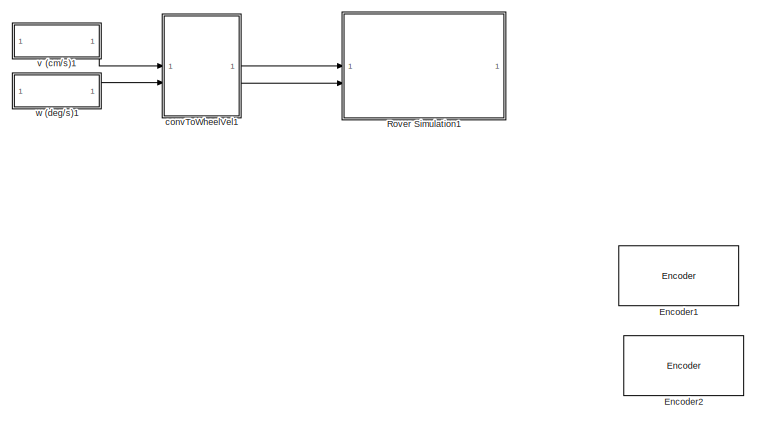
[diagram: root canvas - part 1/11, top left region]
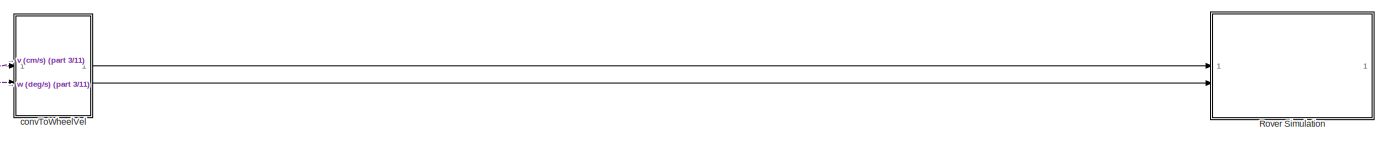
[diagram: root canvas - part 2/11, top center region]
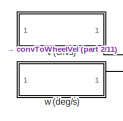
[diagram: root canvas - part 3/11, top left region]
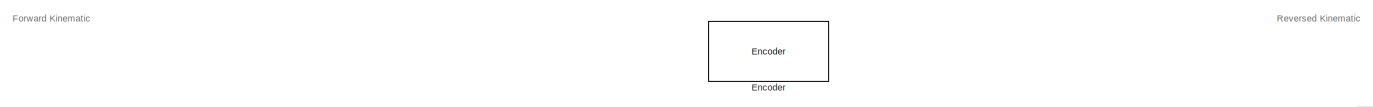
[diagram: root canvas - part 4/11, top center region]
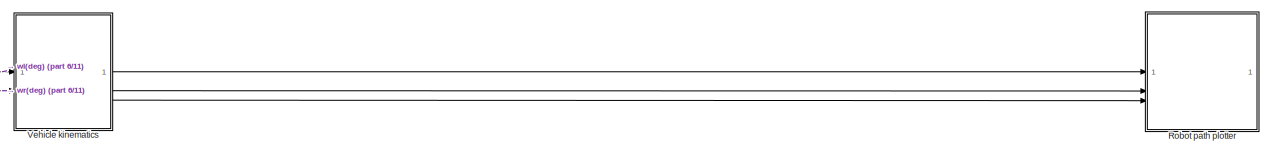
[diagram: root canvas - part 5/11, top right region]
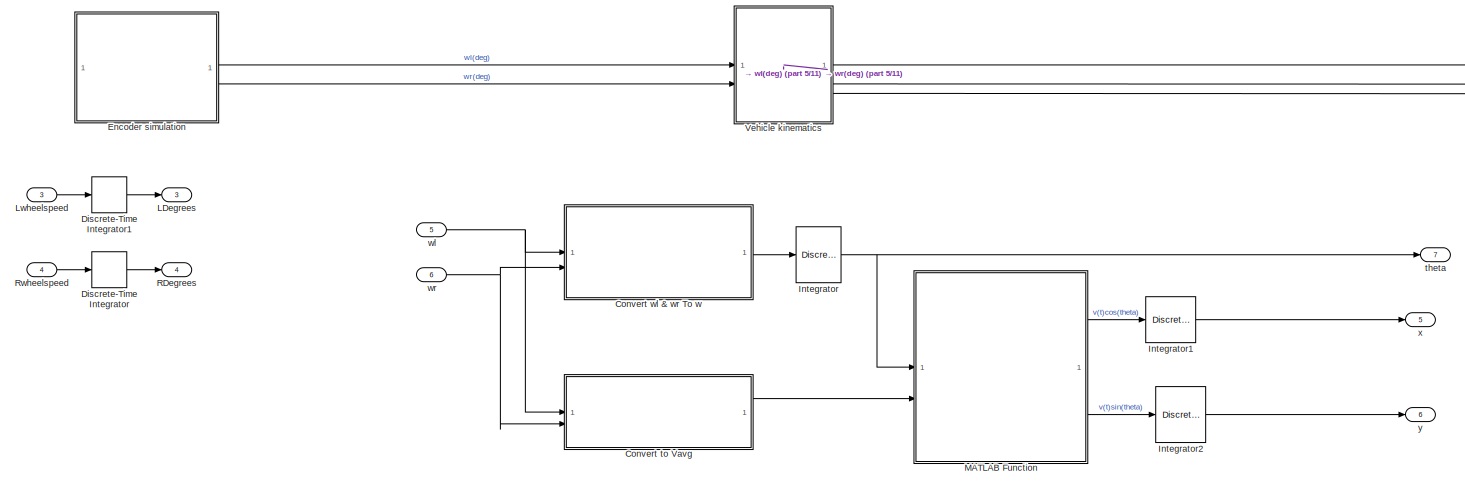
[diagram: root canvas - part 6/11, central region]
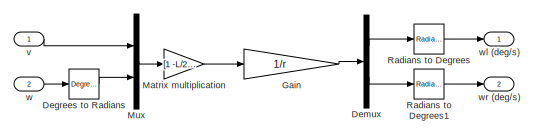
[diagram: root canvas - part 7/11, middle left region]
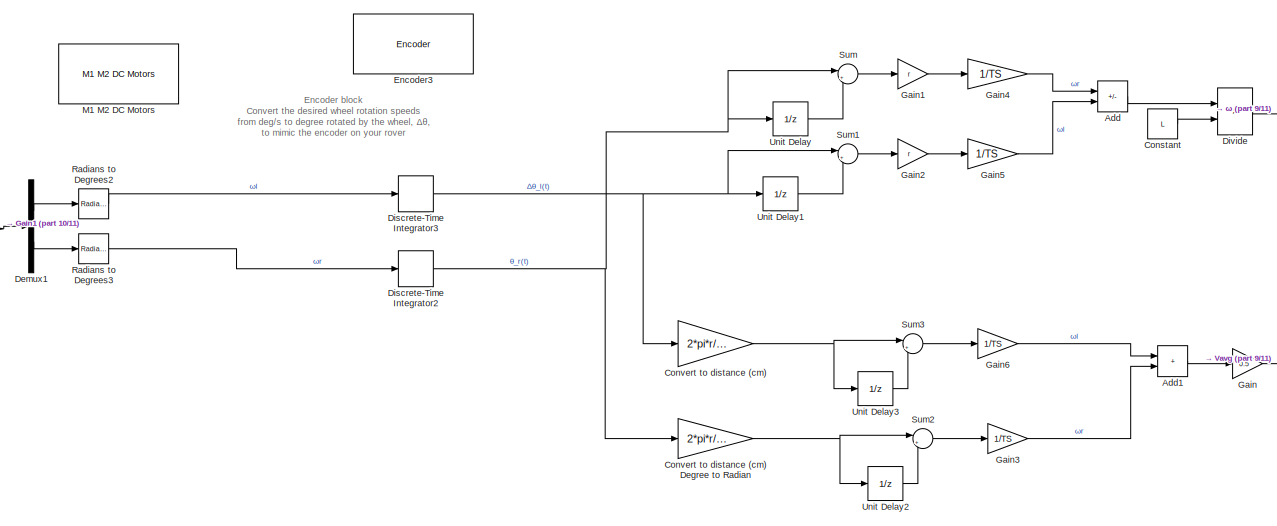
[diagram: root canvas - part 8/11, bottom center region]
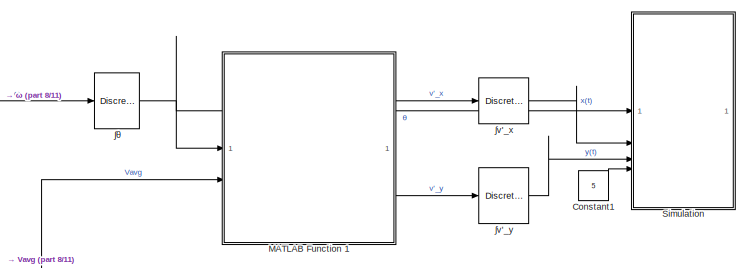
[diagram: root canvas - part 9/11, middle right region]
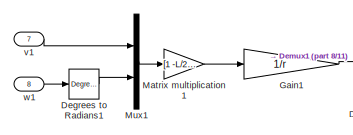
[diagram: root canvas - part 10/11, bottom left region]
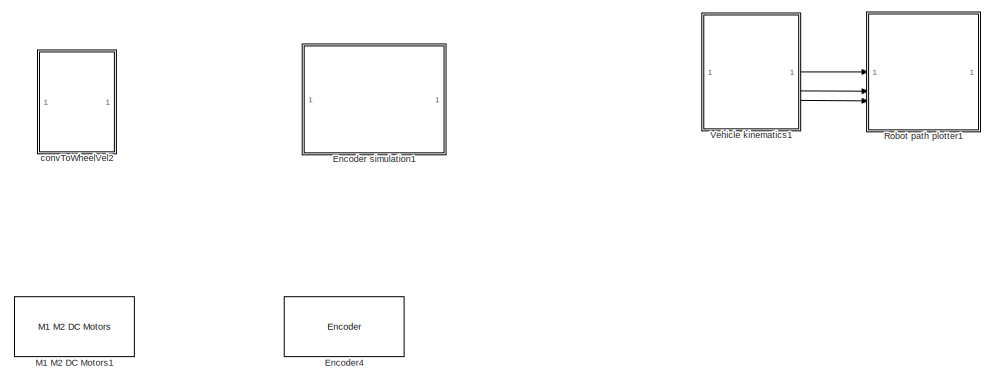
[diagram: root canvas - part 11/11, bottom center region]
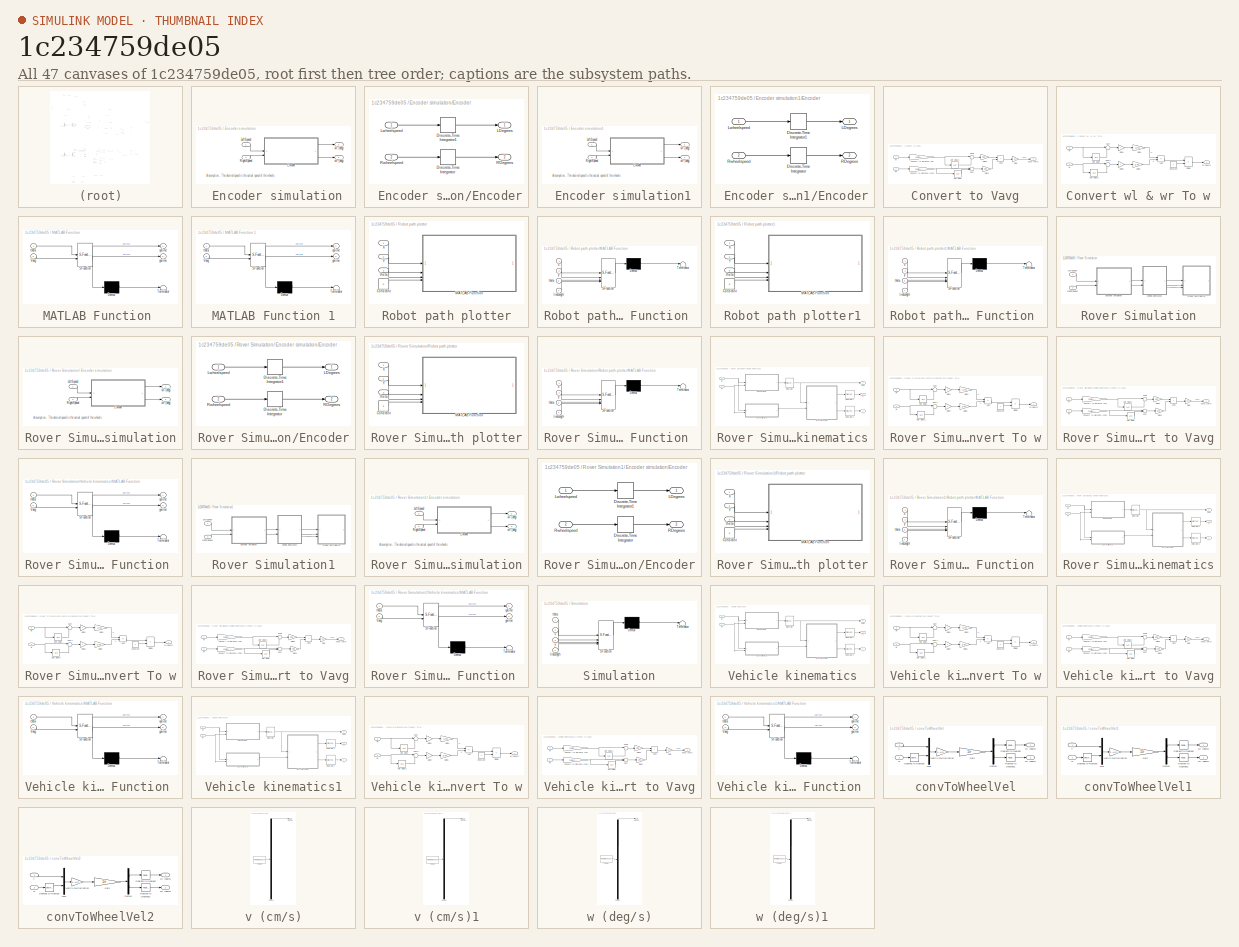
[diagram: thumbnail index - all 47 canvases of the model, root first then tree order]
MODEL slx_1c234759de05
KIND model
CONFIG AbsTol = auto
CONFIG EnableMultiTasking = on
CONFIG FixedStep = TS
CONFIG MaxStep = auto
CONFIG MinStep = auto
CONFIG PostLoadFcn = params
CONFIG RelTol = 1e-3
CONFIG SampleTimeConstraint = Unconstrained
CONFIG SolverName = FixedStepDiscrete
CONFIG StartTime = 0.0
CONFIG StopTime = 11
WORKSPACE source: mxarray member
WORKSPACE Ia = 0.1
WORKSPACE Id = 0.25
WORKSPACE Pa = 5
WORKSPACE Pd = 9
WORKSPACE TS = 0.01
BLOCK [SubSystem]  Encoder simulation
BLOCK [SubSystem]  Encoder simulation/Encoder
BLOCK [DiscreteIntegrator]  Encoder simulation/Encoder/Discrete-Time Integrator
  ICPrevOutput = DiscIntNeverNeededParam
  ICPrevScaledInput = DiscIntNeverNeededParam
  InitialConditionSetting = Auto
  SampleTime = -1
BLOCK [DiscreteIntegrator]  Encoder simulation/Encoder/Discrete-Time Integrator1
  ICPrevOutput = DiscIntNeverNeededParam
  ICPrevScaledInput = DiscIntNeverNeededParam
  InitialConditionSetting = Auto
  SampleTime = -1
BLOCK [Outport]  Encoder simulation/Encoder/LDegrees
  VectorParamsAs1DForOutWhenUnconnected = off
BLOCK [Inport]  Encoder simulation/Encoder/Lwheelspeed
BLOCK [Outport]  Encoder simulation/Encoder/RDegrees
  Port = 2
  VectorParamsAs1DForOutWhenUnconnected = off
BLOCK [Inport]  Encoder simulation/Encoder/Rwheelspeed
  Port = 2
BLOCK [Inport]  Encoder simulation/LeftSpeed
BLOCK [Inport]  Encoder simulation/RightSpeed
  Port = 2
BLOCK [Outport]  Encoder simulation/wl (deg)
  VectorParamsAs1DForOutWhenUnconnected = off
BLOCK [Outport]  Encoder simulation/wr (deg)
  Port = 2
  VectorParamsAs1DForOutWhenUnconnected = off
BLOCK [SubSystem]  Encoder simulation1
BLOCK [SubSystem]  Encoder simulation1/Encoder
BLOCK [DiscreteIntegrator]  Encoder simulation1/Encoder/Discrete-Time Integrator
  ICPrevOutput = DiscIntNeverNeededParam
  ICPrevScaledInput = DiscIntNeverNeededParam
  InitialConditionSetting = Auto
  SampleTime = -1
BLOCK [DiscreteIntegrator]  Encoder simulation1/Encoder/Discrete-Time Integrator1
  ICPrevOutput = DiscIntNeverNeededParam
  ICPrevScaledInput = DiscIntNeverNeededParam
  InitialConditionSetting = Auto
  SampleTime = -1
BLOCK [Outport]  Encoder simulation1/Encoder/LDegrees
  VectorParamsAs1DForOutWhenUnconnected = off
BLOCK [Inport]  Encoder simulation1/Encoder/Lwheelspeed
BLOCK [Outport]  Encoder simulation1/Encoder/RDegrees
  Port = 2
  VectorParamsAs1DForOutWhenUnconnected = off
BLOCK [Inport]  Encoder simulation1/Encoder/Rwheelspeed
  Port = 2
BLOCK [Inport]  Encoder simulation1/LeftSpeed
BLOCK [Inport]  Encoder simulation1/RightSpeed
  Port = 2
BLOCK [Outport]  Encoder simulation1/wl (deg)
  VectorParamsAs1DForOutWhenUnconnected = off
BLOCK [Outport]  Encoder simulation1/wr (deg)
  Port = 2
  VectorParamsAs1DForOutWhenUnconnected = off
BLOCK [Gain]  Gain
  Gain = 1/r
  Multiplication = Matrix(K*u)
BLOCK [Gain]  Gain1
  Gain = 1/r
  Multiplication = Matrix(K*u)
BLOCK [Sum] Add
  IconShape = rectangular
  Inputs = +-
BLOCK [Sum] Add1
  IconShape = rectangular
BLOCK [Constant] Constant
  Value = L
BLOCK [Constant] Constant1
  Value = 5
BLOCK [SubSystem] Convert to Vavg
BLOCK [Sum] Convert to Vavg/Add1
  IconShape = rectangular
BLOCK [Gain] Convert to Vavg/Convert to distance (cm)
  Gain = 2*pi*r/360
BLOCK [Gain] Convert to Vavg/Convert to distance (cm)1
  Gain = 2*pi*r/360
BLOCK [Gain] Convert to Vavg/Gain
  Gain = 0.5
BLOCK [Gain] Convert to Vavg/Gain4
  Gain = 1/TS
BLOCK [Gain] Convert to Vavg/Gain5
  Gain = 1/TS
BLOCK [Sum] Convert to Vavg/Sum
  Inputs = |+-
BLOCK [Sum] Convert to Vavg/Sum1
  Inputs = |+-
BLOCK [UnitDelay] Convert to Vavg/Unit Delay
  HasFrameUpgradeWarning = on
  SampleTime = -1
BLOCK [UnitDelay] Convert to Vavg/Unit Delay1
  HasFrameUpgradeWarning = on
  SampleTime = -1
BLOCK [Outport] Convert to Vavg/Vavg (cm//s)
  VectorParamsAs1DForOutWhenUnconnected = off
BLOCK [Inport] Convert to Vavg/wl
BLOCK [Inport] Convert to Vavg/wr
  Port = 2
BLOCK [Gain] Convert to distance (cm)
  Gain = 2*pi*r/360
BLOCK [Gain] Convert to distance (cm) Degree to Radian
  Gain = 2*pi*r/360
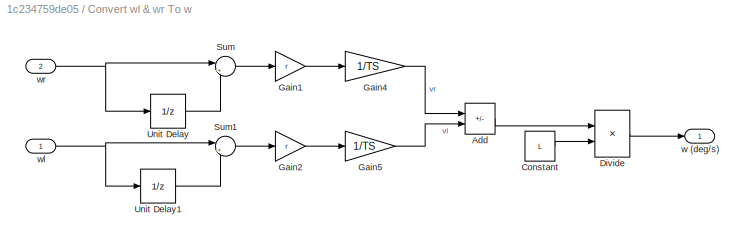
BLOCK [SubSystem] Convert wl & wr To w
BLOCK [Sum] Convert wl & wr To w/Add
  IconShape = rectangular
  Inputs = +-
BLOCK [Constant] Convert wl & wr To w/Constant
  Value = L
BLOCK [Product] Convert wl & wr To w/Divide
  Inputs = */
BLOCK [Gain] Convert wl & wr To w/Gain1
  Gain = r
BLOCK [Gain] Convert wl & wr To w/Gain2
  Gain = r
BLOCK [Gain] Convert wl & wr To w/Gain4
  Gain = 1/TS
BLOCK [Gain] Convert wl & wr To w/Gain5
  Gain = 1/TS
BLOCK [Sum] Convert wl & wr To w/Sum
  Inputs = |+-
BLOCK [Sum] Convert wl & wr To w/Sum1
  Inputs = |+-
BLOCK [UnitDelay] Convert wl & wr To w/Unit Delay
  HasFrameUpgradeWarning = on
  SampleTime = -1
BLOCK [UnitDelay] Convert wl & wr To w/Unit Delay1
  HasFrameUpgradeWarning = on
  SampleTime = -1
BLOCK [Outport] Convert wl & wr To w/w (deg//s)
  VectorParamsAs1DForOutWhenUnconnected = off
BLOCK [Inport] Convert wl & wr To w/wl
BLOCK [Inport] Convert wl & wr To w/wr
  Port = 2
BLOCK [Reference] Degrees to Radians  REF=simulink_extras/Transformations/Degrees to
Radians
  SourceBlock = simulink_extras/Transformations/Degrees to\nRadians
  SourceType = DegreesToRadians
BLOCK [Reference] Degrees to Radians1  REF=simulink_extras/Transformations/Degrees to
Radians
  SourceBlock = simulink_extras/Transformations/Degrees to\nRadians
  SourceType = DegreesToRadians
BLOCK [Demux] Demux
  Outputs = 2
BLOCK [Demux] Demux1
  Outputs = 2
BLOCK [DiscreteIntegrator] Discrete-Time Integrator
  ICPrevOutput = DiscIntNeverNeededParam
  ICPrevScaledInput = DiscIntNeverNeededParam
  InitialConditionSetting = Auto
  SampleTime = -1
BLOCK [DiscreteIntegrator] Discrete-Time Integrator1 
  ICPrevOutput = DiscIntNeverNeededParam
  ICPrevScaledInput = DiscIntNeverNeededParam
  InitialConditionSetting = Auto
  SampleTime = -1
BLOCK [DiscreteIntegrator] Discrete-Time Integrator2
  ICPrevOutput = DiscIntNeverNeededParam
  ICPrevScaledInput = DiscIntNeverNeededParam
  InitialConditionSetting = Auto
  SampleTime = -1
BLOCK [DiscreteIntegrator] Discrete-Time Integrator3
  ICPrevOutput = DiscIntNeverNeededParam
  ICPrevScaledInput = DiscIntNeverNeededParam
  InitialConditionSetting = Auto
  SampleTime = -1
BLOCK [Product] Divide
  Inputs = */
BLOCK [Reference] Encoder  REF=arduinomotorcarrierlib/Encoder
  SourceBlock = arduinomotorcarrierlib/Encoder
  SourceType = motorcarrier.blocks.mkrmotorcarrier_Encoder
BLOCK [Reference] Encoder1  REF=arduinomotorcarrierlib/Encoder
  SourceBlock = arduinomotorcarrierlib/Encoder
  SourceType = motorcarrier.blocks.mkrmotorcarrier_Encoder
BLOCK [Reference] Encoder2  REF=arduinomotorcarrierlib/Encoder
  SourceBlock = arduinomotorcarrierlib/Encoder
  SourceType = motorcarrier.blocks.mkrmotorcarrier_Encoder
BLOCK [Reference] Encoder3  REF=arduinomotorcarrierlib/Encoder
  SourceBlock = arduinomotorcarrierlib/Encoder
  SourceType = motorcarrier.blocks.mkrmotorcarrier_Encoder
BLOCK [Reference] Encoder4  REF=arduinomotorcarrierlib/Encoder
  SourceBlock = arduinomotorcarrierlib/Encoder
  SourceType = motorcarrier.blocks.mkrmotorcarrier_Encoder
BLOCK [Gain] Gain
  Gain = 0.5
BLOCK [Gain] Gain1
  Gain = r
BLOCK [Gain] Gain2
  Gain = r
BLOCK [Gain] Gain3
  Gain = 1/TS
BLOCK [Gain] Gain4
  Gain = 1/TS
BLOCK [Gain] Gain5
  Gain = 1/TS
BLOCK [Gain] Gain6
  Gain = 1/TS
BLOCK [DiscreteIntegrator] Integrator
  ICPrevOutput = DiscIntNeverNeededParam
  ICPrevScaledInput = DiscIntNeverNeededParam
  InitialCondition = StartTheta
  InitialConditionSetting = Auto
  SampleTime = -1
  gainval = 1
BLOCK [DiscreteIntegrator] Integrator1
  ICPrevOutput = DiscIntNeverNeededParam
  ICPrevScaledInput = DiscIntNeverNeededParam
  InitialCondition = StartX
  InitialConditionSetting = Auto
  SampleTime = -1
  gainval = 1
BLOCK [DiscreteIntegrator] Integrator2
  ICPrevOutput = DiscIntNeverNeededParam
  ICPrevScaledInput = DiscIntNeverNeededParam
  InitialCondition = StartY
  InitialConditionSetting = Auto
  SampleTime = -1
  gainval = 1
BLOCK [Outport] LDegrees
  Port = 3
  VectorParamsAs1DForOutWhenUnconnected = off
BLOCK [Inport] Lwheelspeed
  Port = 3
BLOCK [Reference] M1 M2 DC Motors  REF=arduinomotorcarrierlib/M1 M2 DC Motors
  SourceBlock = arduinomotorcarrierlib/M1 M2 DC Motors
  SourceType = DC Motor
BLOCK [Reference] M1 M2 DC Motors1  REF=arduinomotorcarrierlib/M1 M2 DC Motors
  SourceBlock = arduinomotorcarrierlib/M1 M2 DC Motors
  SourceType = DC Motor
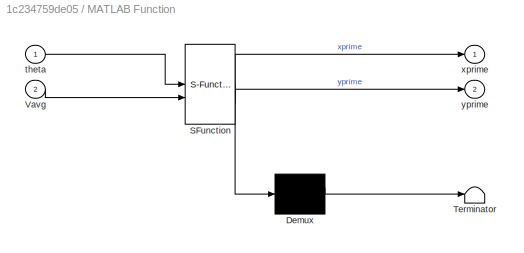
BLOCK [SubSystem] MATLAB Function 
  ErrorFcn = Stateflow.Translate.translate
  PermitHierarchicalResolution = ExplicitOnly
  SFBlockType = MATLAB Function
  TreatAsAtomicUnit = on
BLOCK [Demux] MATLAB Function / Demux 
  Outputs = 1
BLOCK [S-Function] MATLAB Function / SFunction 
  EnableBusSupport = off
  FunctionName = sf_sfun
  PortCounts = [2 3]
  SFcnIsStateOwnerBlock = off
  SFunctionDeploymentMode = off
  Tag = Stateflow S-Function 7
BLOCK [Terminator] MATLAB Function / Terminator 
BLOCK [Inport] MATLAB Function /Vavg
  Port = 2
BLOCK [Inport] MATLAB Function /theta
BLOCK [Outport] MATLAB Function /xprime
  VectorParamsAs1DForOutWhenUnconnected = off
BLOCK [Outport] MATLAB Function /yprime
  Port = 2
  VectorParamsAs1DForOutWhenUnconnected = off
BLOCK [SubSystem] MATLAB Function 1
  ErrorFcn = Stateflow.Translate.translate
  PermitHierarchicalResolution = ExplicitOnly
  SFBlockType = MATLAB Function
  TreatAsAtomicUnit = on
BLOCK [Demux] MATLAB Function 1/ Demux 
  Outputs = 1
BLOCK [S-Function] MATLAB Function 1/ SFunction 
  EnableBusSupport = off
  FunctionName = sf_sfun
  PortCounts = [2 3]
  SFcnIsStateOwnerBlock = off
  SFunctionDeploymentMode = off
  Tag = Stateflow S-Function 8
BLOCK [Terminator] MATLAB Function 1/ Terminator 
BLOCK [Inport] MATLAB Function 1/Vavg
  Port = 2
BLOCK [Inport] MATLAB Function 1/theta
BLOCK [Outport] MATLAB Function 1/xprime
  VectorParamsAs1DForOutWhenUnconnected = off
BLOCK [Outport] MATLAB Function 1/yprime
  Port = 2
  VectorParamsAs1DForOutWhenUnconnected = off
BLOCK [Gain] Matrix multiplication
  Gain = [1 -L/2; 1 L/2]
  Multiplication = Matrix(K*u)
BLOCK [Gain] Matrix multiplication1
  Gain = [1 -L/2; 1 L/2]
  Multiplication = Matrix(K*u)
BLOCK [Mux] Mux
  DisplayOption = bar
  Inputs = 2
BLOCK [Mux] Mux1
  DisplayOption = bar
  Inputs = 2
BLOCK [Outport] RDegrees
  Port = 4
  VectorParamsAs1DForOutWhenUnconnected = off
BLOCK [Reference] Radians to Degrees  REF=simulink_extras/Transformations/Radians
to Degrees
  SourceBlock = simulink_extras/Transformations/Radians\nto Degrees
  SourceType = RadiansToDegrees
BLOCK [Reference] Radians to Degrees1  REF=simulink_extras/Transformations/Radians
to Degrees
  SourceBlock = simulink_extras/Transformations/Radians\nto Degrees
  SourceType = RadiansToDegrees
BLOCK [Reference] Radians to Degrees2  REF=simulink_extras/Transformations/Radians
to Degrees
  SourceBlock = simulink_extras/Transformations/Radians\nto Degrees
  SourceType = RadiansToDegrees
BLOCK [Reference] Radians to Degrees3  REF=simulink_extras/Transformations/Radians
to Degrees
  SourceBlock = simulink_extras/Transformations/Radians\nto Degrees
  SourceType = RadiansToDegrees
BLOCK [SubSystem] Robot path plotter
BLOCK [Constant] Robot path plotter/Constant
  Value = 5
BLOCK [SubSystem] Robot path plotter/MATLAB Function 
  ErrorFcn = Stateflow.Translate.translate
  PermitHierarchicalResolution = ExplicitOnly
  SFBlockType = MATLAB Function
  TreatAsAtomicUnit = on
BLOCK [Demux] Robot path plotter/MATLAB Function / Demux 
  Outputs = 1
BLOCK [S-Function] Robot path plotter/MATLAB Function / SFunction 
  EnableBusSupport = off
  FunctionName = sf_sfun
  Parameters = StartTheta,StartX,StartY
  PortCounts = [4 1]
  SFcnIsStateOwnerBlock = off
  SFunctionDeploymentMode = off
  Tag = Stateflow S-Function 5
BLOCK [Terminator] Robot path plotter/MATLAB Function / Terminator 
BLOCK [Inport] Robot path plotter/MATLAB Function /lineLength
  Port = 4
BLOCK [Inport] Robot path plotter/MATLAB Function /theta
  Port = 3
BLOCK [Inport] Robot path plotter/MATLAB Function /x
BLOCK [Inport] Robot path plotter/MATLAB Function /y
  Port = 2
BLOCK [Inport] Robot path plotter/X
BLOCK [Inport] Robot path plotter/Y
  Port = 2
BLOCK [Inport] Robot path plotter/theta
  Port = 3
BLOCK [SubSystem] Robot path plotter1
BLOCK [Constant] Robot path plotter1/Constant
  Value = 5
BLOCK [SubSystem] Robot path plotter1/MATLAB Function 
  ErrorFcn = Stateflow.Translate.translate
  PermitHierarchicalResolution = ExplicitOnly
  SFBlockType = MATLAB Function
  TreatAsAtomicUnit = on
BLOCK [Demux] Robot path plotter1/MATLAB Function / Demux 
  Outputs = 1
BLOCK [S-Function] Robot path plotter1/MATLAB Function / SFunction 
  EnableBusSupport = off
  FunctionName = sf_sfun
  Parameters = StartTheta,StartX,StartY
  PortCounts = [4 1]
  SFcnIsStateOwnerBlock = off
  SFunctionDeploymentMode = off
  Tag = Stateflow S-Function 10
BLOCK [Terminator] Robot path plotter1/MATLAB Function / Terminator 
BLOCK [Inport] Robot path plotter1/MATLAB Function /lineLength
  Port = 4
BLOCK [Inport] Robot path plotter1/MATLAB Function /theta
  Port = 3
BLOCK [Inport] Robot path plotter1/MATLAB Function /x
BLOCK [Inport] Robot path plotter1/MATLAB Function /y
  Port = 2
BLOCK [Inport] Robot path plotter1/X
BLOCK [Inport] Robot path plotter1/Y
  Port = 2
BLOCK [Inport] Robot path plotter1/theta
  Port = 3
BLOCK [SubSystem] Rover Simulation
BLOCK [SubSystem] Rover Simulation/ Encoder simulation
BLOCK [SubSystem] Rover Simulation/ Encoder simulation/Encoder
BLOCK [DiscreteIntegrator] Rover Simulation/ Encoder simulation/Encoder/Discrete-Time Integrator
  ICPrevOutput = DiscIntNeverNeededParam
  ICPrevScaledInput = DiscIntNeverNeededParam
  InitialConditionSetting = Auto
  SampleTime = -1
BLOCK [DiscreteIntegrator] Rover Simulation/ Encoder simulation/Encoder/Discrete-Time Integrator1
  ICPrevOutput = DiscIntNeverNeededParam
  ICPrevScaledInput = DiscIntNeverNeededParam
  InitialConditionSetting = Auto
  SampleTime = -1
BLOCK [Outport] Rover Simulation/ Encoder simulation/Encoder/LDegrees
  VectorParamsAs1DForOutWhenUnconnected = off
BLOCK [Inport] Rover Simulation/ Encoder simulation/Encoder/Lwheelspeed
BLOCK [Outport] Rover Simulation/ Encoder simulation/Encoder/RDegrees
  Port = 2
  VectorParamsAs1DForOutWhenUnconnected = off
BLOCK [Inport] Rover Simulation/ Encoder simulation/Encoder/Rwheelspeed
  Port = 2
BLOCK [Inport] Rover Simulation/ Encoder simulation/LeftSpeed
BLOCK [Inport] Rover Simulation/ Encoder simulation/RightSpeed
  Port = 2
BLOCK [Outport] Rover Simulation/ Encoder simulation/wl (deg)
  VectorParamsAs1DForOutWhenUnconnected = off
BLOCK [Outport] Rover Simulation/ Encoder simulation/wr (deg)
  Port = 2
  VectorParamsAs1DForOutWhenUnconnected = off
BLOCK [Inport] Rover Simulation/LeftSpeed
BLOCK [Inport] Rover Simulation/RightSpeed
  Port = 2
BLOCK [SubSystem] Rover Simulation/Robot path plotter
BLOCK [Constant] Rover Simulation/Robot path plotter/Constant
  Value = 5
BLOCK [SubSystem] Rover Simulation/Robot path plotter/MATLAB Function 
  ErrorFcn = Stateflow.Translate.translate
  PermitHierarchicalResolution = ExplicitOnly
  SFBlockType = MATLAB Function
  TreatAsAtomicUnit = on
BLOCK [Demux] Rover Simulation/Robot path plotter/MATLAB Function / Demux 
  Outputs = 1
BLOCK [S-Function] Rover Simulation/Robot path plotter/MATLAB Function / SFunction 
  EnableBusSupport = off
  FunctionName = sf_sfun
  Parameters = StartTheta,StartX,StartY
  PortCounts = [4 1]
  SFcnIsStateOwnerBlock = off
  SFunctionDeploymentMode = off
  Tag = Stateflow S-Function 1
BLOCK [Terminator] Rover Simulation/Robot path plotter/MATLAB Function / Terminator 
BLOCK [Inport] Rover Simulation/Robot path plotter/MATLAB Function /lineLength
  Port = 4
BLOCK [Inport] Rover Simulation/Robot path plotter/MATLAB Function /theta
  Port = 3
BLOCK [Inport] Rover Simulation/Robot path plotter/MATLAB Function /x
BLOCK [Inport] Rover Simulation/Robot path plotter/MATLAB Function /y
  Port = 2
BLOCK [Inport] Rover Simulation/Robot path plotter/X
BLOCK [Inport] Rover Simulation/Robot path plotter/Y
  Port = 2
BLOCK [Inport] Rover Simulation/Robot path plotter/theta
  Port = 3
BLOCK [SubSystem] Rover Simulation/Vehicle kinematics
BLOCK [SubSystem] Rover Simulation/Vehicle kinematics/Convert To w
BLOCK [Sum] Rover Simulation/Vehicle kinematics/Convert To w/Add
  IconShape = rectangular
  Inputs = +-
BLOCK [Constant] Rover Simulation/Vehicle kinematics/Convert To w/Constant
  Value = L
BLOCK [Product] Rover Simulation/Vehicle kinematics/Convert To w/Divide
  Inputs = */
BLOCK [Gain] Rover Simulation/Vehicle kinematics/Convert To w/Gain1
  Gain = r
BLOCK [Gain] Rover Simulation/Vehicle kinematics/Convert To w/Gain2
  Gain = r
BLOCK [Gain] Rover Simulation/Vehicle kinematics/Convert To w/Gain4
  Gain = 1/TS
BLOCK [Gain] Rover Simulation/Vehicle kinematics/Convert To w/Gain5
  Gain = 1/TS
BLOCK [Sum] Rover Simulation/Vehicle kinematics/Convert To w/Sum
  Inputs = |+-
BLOCK [Sum] Rover Simulation/Vehicle kinematics/Convert To w/Sum1
  Inputs = |+-
BLOCK [UnitDelay] Rover Simulation/Vehicle kinematics/Convert To w/Unit Delay
  HasFrameUpgradeWarning = on
  SampleTime = -1
BLOCK [UnitDelay] Rover Simulation/Vehicle kinematics/Convert To w/Unit Delay1
  HasFrameUpgradeWarning = on
  SampleTime = -1
BLOCK [Outport] Rover Simulation/Vehicle kinematics/Convert To w/w (deg//s)
  VectorParamsAs1DForOutWhenUnconnected = off
BLOCK [Inport] Rover Simulation/Vehicle kinematics/Convert To w/wl
BLOCK [Inport] Rover Simulation/Vehicle kinematics/Convert To w/wr
  Port = 2
BLOCK [SubSystem] Rover Simulation/Vehicle kinematics/Convert to Vavg
BLOCK [Sum] Rover Simulation/Vehicle kinematics/Convert to Vavg/Add1
  IconShape = rectangular
BLOCK [Gain] Rover Simulation/Vehicle kinematics/Convert to Vavg/Convert to distance (cm)
  Gain = 2*pi*r/360
BLOCK [Gain] Rover Simulation/Vehicle kinematics/Convert to Vavg/Convert to distance (cm)1
  Gain = 2*pi*r/360
BLOCK [Gain] Rover Simulation/Vehicle kinematics/Convert to Vavg/Gain
  Gain = 0.5
BLOCK [Gain] Rover Simulation/Vehicle kinematics/Convert to Vavg/Gain4
  Gain = 1/TS
BLOCK [Gain] Rover Simulation/Vehicle kinematics/Convert to Vavg/Gain5
  Gain = 1/TS
BLOCK [Sum] Rover Simulation/Vehicle kinematics/Convert to Vavg/Sum
  Inputs = |+-
BLOCK [Sum] Rover Simulation/Vehicle kinematics/Convert to Vavg/Sum1
  Inputs = |+-
BLOCK [UnitDelay] Rover Simulation/Vehicle kinematics/Convert to Vavg/Unit Delay
  HasFrameUpgradeWarning = on
  SampleTime = -1
BLOCK [UnitDelay] Rover Simulation/Vehicle kinematics/Convert to Vavg/Unit Delay1
  HasFrameUpgradeWarning = on
  SampleTime = -1
BLOCK [Outport] Rover Simulation/Vehicle kinematics/Convert to Vavg/Vavg (cm//s)
  VectorParamsAs1DForOutWhenUnconnected = off
BLOCK [Inport] Rover Simulation/Vehicle kinematics/Convert to Vavg/wl
BLOCK [Inport] Rover Simulation/Vehicle kinematics/Convert to Vavg/wr
  Port = 2
BLOCK [DiscreteIntegrator] Rover Simulation/Vehicle kinematics/Integrator
  ICPrevOutput = DiscIntNeverNeededParam
  ICPrevScaledInput = DiscIntNeverNeededParam
  InitialCondition = StartTheta
  InitialConditionSetting = Auto
  SampleTime = -1
  gainval = 1
BLOCK [DiscreteIntegrator] Rover Simulation/Vehicle kinematics/Integrator1
  ICPrevOutput = DiscIntNeverNeededParam
  ICPrevScaledInput = DiscIntNeverNeededParam
  InitialCondition = StartX
  InitialConditionSetting = Auto
  SampleTime = -1
  gainval = 1
BLOCK [DiscreteIntegrator] Rover Simulation/Vehicle kinematics/Integrator2
  ICPrevOutput = DiscIntNeverNeededParam
  ICPrevScaledInput = DiscIntNeverNeededParam
  InitialCondition = StartY
  InitialConditionSetting = Auto
  SampleTime = -1
  gainval = 1
BLOCK [SubSystem] Rover Simulation/Vehicle kinematics/MATLAB Function 
  ErrorFcn = Stateflow.Translate.translate
  PermitHierarchicalResolution = ExplicitOnly
  SFBlockType = MATLAB Function
  TreatAsAtomicUnit = on
BLOCK [Demux] Rover Simulation/Vehicle kinematics/MATLAB Function / Demux 
  Outputs = 1
BLOCK [S-Function] Rover Simulation/Vehicle kinematics/MATLAB Function / SFunction 
  EnableBusSupport = off
  FunctionName = sf_sfun
  PortCounts = [2 3]
  SFcnIsStateOwnerBlock = off
  SFunctionDeploymentMode = off
  Tag = Stateflow S-Function 2
BLOCK [Terminator] Rover Simulation/Vehicle kinematics/MATLAB Function / Terminator 
BLOCK [Inport] Rover Simulation/Vehicle kinematics/MATLAB Function /Vavg
  Port = 2
BLOCK [Inport] Rover Simulation/Vehicle kinematics/MATLAB Function /theta
BLOCK [Outport] Rover Simulation/Vehicle kinematics/MATLAB Function /xprime
  VectorParamsAs1DForOutWhenUnconnected = off
BLOCK [Outport] Rover Simulation/Vehicle kinematics/MATLAB Function /yprime
  Port = 2
  VectorParamsAs1DForOutWhenUnconnected = off
BLOCK [Outport] Rover Simulation/Vehicle kinematics/theta
  Port = 3
  VectorParamsAs1DForOutWhenUnconnected = off
BLOCK [Inport] Rover Simulation/Vehicle kinematics/wl
BLOCK [Inport] Rover Simulation/Vehicle kinematics/wr
  Port = 2
BLOCK [Outport] Rover Simulation/Vehicle kinematics/x
  VectorParamsAs1DForOutWhenUnconnected = off
BLOCK [Outport] Rover Simulation/Vehicle kinematics/y
  Port = 2
  VectorParamsAs1DForOutWhenUnconnected = off
BLOCK [SubSystem] Rover Simulation1
BLOCK [SubSystem] Rover Simulation1/ Encoder simulation
BLOCK [SubSystem] Rover Simulation1/ Encoder simulation/Encoder
BLOCK [DiscreteIntegrator] Rover Simulation1/ Encoder simulation/Encoder/Discrete-Time Integrator
  ICPrevOutput = DiscIntNeverNeededParam
  ICPrevScaledInput = DiscIntNeverNeededParam
  InitialConditionSetting = Auto
  SampleTime = -1
BLOCK [DiscreteIntegrator] Rover Simulation1/ Encoder simulation/Encoder/Discrete-Time Integrator1
  ICPrevOutput = DiscIntNeverNeededParam
  ICPrevScaledInput = DiscIntNeverNeededParam
  InitialConditionSetting = Auto
  SampleTime = -1
BLOCK [Outport] Rover Simulation1/ Encoder simulation/Encoder/LDegrees
  VectorParamsAs1DForOutWhenUnconnected = off
BLOCK [Inport] Rover Simulation1/ Encoder simulation/Encoder/Lwheelspeed
BLOCK [Outport] Rover Simulation1/ Encoder simulation/Encoder/RDegrees
  Port = 2
  VectorParamsAs1DForOutWhenUnconnected = off
BLOCK [Inport] Rover Simulation1/ Encoder simulation/Encoder/Rwheelspeed
  Port = 2
BLOCK [Inport] Rover Simulation1/ Encoder simulation/LeftSpeed
BLOCK [Inport] Rover Simulation1/ Encoder simulation/RightSpeed
  Port = 2
BLOCK [Outport] Rover Simulation1/ Encoder simulation/wl (deg)
  VectorParamsAs1DForOutWhenUnconnected = off
BLOCK [Outport] Rover Simulation1/ Encoder simulation/wr (deg)
  Port = 2
  VectorParamsAs1DForOutWhenUnconnected = off
BLOCK [Inport] Rover Simulation1/LeftSpeed
BLOCK [Inport] Rover Simulation1/RightSpeed
  Port = 2
BLOCK [SubSystem] Rover Simulation1/Robot path plotter
BLOCK [Constant] Rover Simulation1/Robot path plotter/Constant
  Value = 5
BLOCK [SubSystem] Rover Simulation1/Robot path plotter/MATLAB Function 
  ErrorFcn = Stateflow.Translate.translate
  PermitHierarchicalResolution = ExplicitOnly
  SFBlockType = MATLAB Function
  TreatAsAtomicUnit = on
BLOCK [Demux] Rover Simulation1/Robot path plotter/MATLAB Function / Demux 
  Outputs = 1
BLOCK [S-Function] Rover Simulation1/Robot path plotter/MATLAB Function / SFunction 
  EnableBusSupport = off
  FunctionName = sf_sfun
  Parameters = StartTheta,StartX,StartY
  PortCounts = [4 1]
  SFcnIsStateOwnerBlock = off
  SFunctionDeploymentMode = off
  Tag = Stateflow S-Function 3
BLOCK [Terminator] Rover Simulation1/Robot path plotter/MATLAB Function / Terminator 
BLOCK [Inport] Rover Simulation1/Robot path plotter/MATLAB Function /lineLength
  Port = 4
BLOCK [Inport] Rover Simulation1/Robot path plotter/MATLAB Function /theta
  Port = 3
BLOCK [Inport] Rover Simulation1/Robot path plotter/MATLAB Function /x
BLOCK [Inport] Rover Simulation1/Robot path plotter/MATLAB Function /y
  Port = 2
BLOCK [Inport] Rover Simulation1/Robot path plotter/X
BLOCK [Inport] Rover Simulation1/Robot path plotter/Y
  Port = 2
BLOCK [Inport] Rover Simulation1/Robot path plotter/theta
  Port = 3
BLOCK [SubSystem] Rover Simulation1/Vehicle kinematics
BLOCK [SubSystem] Rover Simulation1/Vehicle kinematics/Convert To w
BLOCK [Sum] Rover Simulation1/Vehicle kinematics/Convert To w/Add
  IconShape = rectangular
  Inputs = +-
BLOCK [Constant] Rover Simulation1/Vehicle kinematics/Convert To w/Constant
  Value = L
BLOCK [Product] Rover Simulation1/Vehicle kinematics/Convert To w/Divide
  Inputs = */
BLOCK [Gain] Rover Simulation1/Vehicle kinematics/Convert To w/Gain1
  Gain = r
BLOCK [Gain] Rover Simulation1/Vehicle kinematics/Convert To w/Gain2
  Gain = r
BLOCK [Gain] Rover Simulation1/Vehicle kinematics/Convert To w/Gain4
  Gain = 1/TS
BLOCK [Gain] Rover Simulation1/Vehicle kinematics/Convert To w/Gain5
  Gain = 1/TS
BLOCK [Sum] Rover Simulation1/Vehicle kinematics/Convert To w/Sum
  Inputs = |+-
BLOCK [Sum] Rover Simulation1/Vehicle kinematics/Convert To w/Sum1
  Inputs = |+-
BLOCK [UnitDelay] Rover Simulation1/Vehicle kinematics/Convert To w/Unit Delay
  HasFrameUpgradeWarning = on
  SampleTime = -1
BLOCK [UnitDelay] Rover Simulation1/Vehicle kinematics/Convert To w/Unit Delay1
  HasFrameUpgradeWarning = on
  SampleTime = -1
BLOCK [Outport] Rover Simulation1/Vehicle kinematics/Convert To w/w (deg//s)
  VectorParamsAs1DForOutWhenUnconnected = off
BLOCK [Inport] Rover Simulation1/Vehicle kinematics/Convert To w/wl
BLOCK [Inport] Rover Simulation1/Vehicle kinematics/Convert To w/wr
  Port = 2
BLOCK [SubSystem] Rover Simulation1/Vehicle kinematics/Convert to Vavg
BLOCK [Sum] Rover Simulation1/Vehicle kinematics/Convert to Vavg/Add1
  IconShape = rectangular
BLOCK [Gain] Rover Simulation1/Vehicle kinematics/Convert to Vavg/Convert to distance (cm)
  Gain = 2*pi*r/360
BLOCK [Gain] Rover Simulation1/Vehicle kinematics/Convert to Vavg/Convert to distance (cm)1
  Gain = 2*pi*r/360
BLOCK [Gain] Rover Simulation1/Vehicle kinematics/Convert to Vavg/Gain
  Gain = 0.5
BLOCK [Gain] Rover Simulation1/Vehicle kinematics/Convert to Vavg/Gain4
  Gain = 1/TS
BLOCK [Gain] Rover Simulation1/Vehicle kinematics/Convert to Vavg/Gain5
  Gain = 1/TS
BLOCK [Sum] Rover Simulation1/Vehicle kinematics/Convert to Vavg/Sum
  Inputs = |+-
BLOCK [Sum] Rover Simulation1/Vehicle kinematics/Convert to Vavg/Sum1
  Inputs = |+-
BLOCK [UnitDelay] Rover Simulation1/Vehicle kinematics/Convert to Vavg/Unit Delay
  HasFrameUpgradeWarning = on
  SampleTime = -1
BLOCK [UnitDelay] Rover Simulation1/Vehicle kinematics/Convert to Vavg/Unit Delay1
  HasFrameUpgradeWarning = on
  SampleTime = -1
BLOCK [Outport] Rover Simulation1/Vehicle kinematics/Convert to Vavg/Vavg (cm//s)
  VectorParamsAs1DForOutWhenUnconnected = off
BLOCK [Inport] Rover Simulation1/Vehicle kinematics/Convert to Vavg/wl
BLOCK [Inport] Rover Simulation1/Vehicle kinematics/Convert to Vavg/wr
  Port = 2
BLOCK [DiscreteIntegrator] Rover Simulation1/Vehicle kinematics/Integrator
  ICPrevOutput = DiscIntNeverNeededParam
  ICPrevScaledInput = DiscIntNeverNeededParam
  InitialCondition = StartTheta
  InitialConditionSetting = Auto
  SampleTime = -1
  gainval = 1
BLOCK [DiscreteIntegrator] Rover Simulation1/Vehicle kinematics/Integrator1
  ICPrevOutput = DiscIntNeverNeededParam
  ICPrevScaledInput = DiscIntNeverNeededParam
  InitialCondition = StartX
  InitialConditionSetting = Auto
  SampleTime = -1
  gainval = 1
BLOCK [DiscreteIntegrator] Rover Simulation1/Vehicle kinematics/Integrator2
  ICPrevOutput = DiscIntNeverNeededParam
  ICPrevScaledInput = DiscIntNeverNeededParam
  InitialCondition = StartY
  InitialConditionSetting = Auto
  SampleTime = -1
  gainval = 1
BLOCK [SubSystem] Rover Simulation1/Vehicle kinematics/MATLAB Function 
  ErrorFcn = Stateflow.Translate.translate
  PermitHierarchicalResolution = ExplicitOnly
  SFBlockType = MATLAB Function
  TreatAsAtomicUnit = on
BLOCK [Demux] Rover Simulation1/Vehicle kinematics/MATLAB Function / Demux 
  Outputs = 1
BLOCK [S-Function] Rover Simulation1/Vehicle kinematics/MATLAB Function / SFunction 
  EnableBusSupport = off
  FunctionName = sf_sfun
  PortCounts = [2 3]
  SFcnIsStateOwnerBlock = off
  SFunctionDeploymentMode = off
  Tag = Stateflow S-Function 4
BLOCK [Terminator] Rover Simulation1/Vehicle kinematics/MATLAB Function / Terminator 
BLOCK [Inport] Rover Simulation1/Vehicle kinematics/MATLAB Function /Vavg
  Port = 2
BLOCK [Inport] Rover Simulation1/Vehicle kinematics/MATLAB Function /theta
BLOCK [Outport] Rover Simulation1/Vehicle kinematics/MATLAB Function /xprime
  VectorParamsAs1DForOutWhenUnconnected = off
BLOCK [Outport] Rover Simulation1/Vehicle kinematics/MATLAB Function /yprime
  Port = 2
  VectorParamsAs1DForOutWhenUnconnected = off
BLOCK [Outport] Rover Simulation1/Vehicle kinematics/theta
  Port = 3
  VectorParamsAs1DForOutWhenUnconnected = off
BLOCK [Inport] Rover Simulation1/Vehicle kinematics/wl
BLOCK [Inport] Rover Simulation1/Vehicle kinematics/wr
  Port = 2
BLOCK [Outport] Rover Simulation1/Vehicle kinematics/x
  VectorParamsAs1DForOutWhenUnconnected = off
BLOCK [Outport] Rover Simulation1/Vehicle kinematics/y
  Port = 2
  VectorParamsAs1DForOutWhenUnconnected = off
BLOCK [Inport] Rwheelspeed
  Port = 4
BLOCK [SubSystem] Simulation
  ErrorFcn = Stateflow.Translate.translate
  PermitHierarchicalResolution = ExplicitOnly
  SFBlockType = MATLAB Function
  TreatAsAtomicUnit = on
BLOCK [Demux] Simulation/ Demux 
  Outputs = 1
BLOCK [S-Function] Simulation/ SFunction 
  EnableBusSupport = off
  FunctionName = sf_sfun
  Parameters = StartTheta,StartX,StartY
  PortCounts = [4 1]
  SFcnIsStateOwnerBlock = off
  SFunctionDeploymentMode = off
  Tag = Stateflow S-Function 9
BLOCK [Terminator] Simulation/ Terminator 
BLOCK [Inport] Simulation/lineLength
  Port = 4
BLOCK [Inport] Simulation/theta
BLOCK [Inport] Simulation/x
  Port = 2
BLOCK [Inport] Simulation/y
  Port = 3
BLOCK [Sum] Sum
  Inputs = |+-
BLOCK [Sum] Sum1
  Inputs = |+-
BLOCK [Sum] Sum2
  Inputs = |+-
BLOCK [Sum] Sum3
  Inputs = |+-
BLOCK [UnitDelay] Unit Delay
  HasFrameUpgradeWarning = on
  SampleTime = -1
BLOCK [UnitDelay] Unit Delay1
  HasFrameUpgradeWarning = on
  SampleTime = -1
BLOCK [UnitDelay] Unit Delay2
  HasFrameUpgradeWarning = on
  SampleTime = -1
BLOCK [UnitDelay] Unit Delay3
  HasFrameUpgradeWarning = on
  SampleTime = -1
BLOCK [SubSystem] Vehicle kinematics
BLOCK [SubSystem] Vehicle kinematics/Convert To w
BLOCK [Sum] Vehicle kinematics/Convert To w/Add
  IconShape = rectangular
  Inputs = +-
BLOCK [Constant] Vehicle kinematics/Convert To w/Constant
  Value = L
BLOCK [Product] Vehicle kinematics/Convert To w/Divide
  Inputs = */
BLOCK [Gain] Vehicle kinematics/Convert To w/Gain1
  Gain = r
BLOCK [Gain] Vehicle kinematics/Convert To w/Gain2
  Gain = r
BLOCK [Gain] Vehicle kinematics/Convert To w/Gain4
  Gain = 1/TS
BLOCK [Gain] Vehicle kinematics/Convert To w/Gain5
  Gain = 1/TS
BLOCK [Sum] Vehicle kinematics/Convert To w/Sum
  Inputs = |+-
BLOCK [Sum] Vehicle kinematics/Convert To w/Sum1
  Inputs = |+-
BLOCK [UnitDelay] Vehicle kinematics/Convert To w/Unit Delay
  HasFrameUpgradeWarning = on
  SampleTime = -1
BLOCK [UnitDelay] Vehicle kinematics/Convert To w/Unit Delay1
  HasFrameUpgradeWarning = on
  SampleTime = -1
BLOCK [Outport] Vehicle kinematics/Convert To w/w (deg//s)
  VectorParamsAs1DForOutWhenUnconnected = off
BLOCK [Inport] Vehicle kinematics/Convert To w/wl
BLOCK [Inport] Vehicle kinematics/Convert To w/wr
  Port = 2
BLOCK [SubSystem] Vehicle kinematics/Convert to Vavg
BLOCK [Sum] Vehicle kinematics/Convert to Vavg/Add1
  IconShape = rectangular
BLOCK [Gain] Vehicle kinematics/Convert to Vavg/Convert to distance (cm)
  Gain = 2*pi*r/360
BLOCK [Gain] Vehicle kinematics/Convert to Vavg/Convert to distance (cm)1
  Gain = 2*pi*r/360
BLOCK [Gain] Vehicle kinematics/Convert to Vavg/Gain
  Gain = 0.5
BLOCK [Gain] Vehicle kinematics/Convert to Vavg/Gain4
  Gain = 1/TS
BLOCK [Gain] Vehicle kinematics/Convert to Vavg/Gain5
  Gain = 1/TS
BLOCK [Sum] Vehicle kinematics/Convert to Vavg/Sum
  Inputs = |+-
BLOCK [Sum] Vehicle kinematics/Convert to Vavg/Sum1
  Inputs = |+-
BLOCK [UnitDelay] Vehicle kinematics/Convert to Vavg/Unit Delay
  HasFrameUpgradeWarning = on
  SampleTime = -1
BLOCK [UnitDelay] Vehicle kinematics/Convert to Vavg/Unit Delay1
  HasFrameUpgradeWarning = on
  SampleTime = -1
BLOCK [Outport] Vehicle kinematics/Convert to Vavg/Vavg (cm//s)
  VectorParamsAs1DForOutWhenUnconnected = off
BLOCK [Inport] Vehicle kinematics/Convert to Vavg/wl
BLOCK [Inport] Vehicle kinematics/Convert to Vavg/wr
  Port = 2
BLOCK [DiscreteIntegrator] Vehicle kinematics/Integrator
  ICPrevOutput = DiscIntNeverNeededParam
  ICPrevScaledInput = DiscIntNeverNeededParam
  InitialCondition = StartTheta
  InitialConditionSetting = Auto
  SampleTime = -1
  gainval = 1
BLOCK [DiscreteIntegrator] Vehicle kinematics/Integrator1
  ICPrevOutput = DiscIntNeverNeededParam
  ICPrevScaledInput = DiscIntNeverNeededParam
  InitialCondition = StartX
  InitialConditionSetting = Auto
  SampleTime = -1
  gainval = 1
BLOCK [DiscreteIntegrator] Vehicle kinematics/Integrator2
  ICPrevOutput = DiscIntNeverNeededParam
  ICPrevScaledInput = DiscIntNeverNeededParam
  InitialCondition = StartY
  InitialConditionSetting = Auto
  SampleTime = -1
  gainval = 1
BLOCK [SubSystem] Vehicle kinematics/MATLAB Function 
  ErrorFcn = Stateflow.Translate.translate
  PermitHierarchicalResolution = ExplicitOnly
  SFBlockType = MATLAB Function
  TreatAsAtomicUnit = on
BLOCK [Demux] Vehicle kinematics/MATLAB Function / Demux 
  Outputs = 1
BLOCK [S-Function] Vehicle kinematics/MATLAB Function / SFunction 
  EnableBusSupport = off
  FunctionName = sf_sfun
  PortCounts = [2 3]
  SFcnIsStateOwnerBlock = off
  SFunctionDeploymentMode = off
  Tag = Stateflow S-Function 6
BLOCK [Terminator] Vehicle kinematics/MATLAB Function / Terminator 
BLOCK [Inport] Vehicle kinematics/MATLAB Function /Vavg
  Port = 2
BLOCK [Inport] Vehicle kinematics/MATLAB Function /theta
BLOCK [Outport] Vehicle kinematics/MATLAB Function /xprime
  VectorParamsAs1DForOutWhenUnconnected = off
BLOCK [Outport] Vehicle kinematics/MATLAB Function /yprime
  Port = 2
  VectorParamsAs1DForOutWhenUnconnected = off
BLOCK [Outport] Vehicle kinematics/theta
  Port = 3
  VectorParamsAs1DForOutWhenUnconnected = off
BLOCK [Inport] Vehicle kinematics/wl
BLOCK [Inport] Vehicle kinematics/wr
  Port = 2
BLOCK [Outport] Vehicle kinematics/x
  VectorParamsAs1DForOutWhenUnconnected = off
BLOCK [Outport] Vehicle kinematics/y
  Port = 2
  VectorParamsAs1DForOutWhenUnconnected = off
BLOCK [SubSystem] Vehicle kinematics1
BLOCK [SubSystem] Vehicle kinematics1/Convert To w
BLOCK [Sum] Vehicle kinematics1/Convert To w/Add
  IconShape = rectangular
  Inputs = +-
BLOCK [Constant] Vehicle kinematics1/Convert To w/Constant
  Value = L
BLOCK [Product] Vehicle kinematics1/Convert To w/Divide
  Inputs = */
BLOCK [Gain] Vehicle kinematics1/Convert To w/Gain1
  Gain = r
BLOCK [Gain] Vehicle kinematics1/Convert To w/Gain2
  Gain = r
BLOCK [Gain] Vehicle kinematics1/Convert To w/Gain4
  Gain = 1/TS
BLOCK [Gain] Vehicle kinematics1/Convert To w/Gain5
  Gain = 1/TS
BLOCK [Sum] Vehicle kinematics1/Convert To w/Sum
  Inputs = |+-
BLOCK [Sum] Vehicle kinematics1/Convert To w/Sum1
  Inputs = |+-
BLOCK [UnitDelay] Vehicle kinematics1/Convert To w/Unit Delay
  HasFrameUpgradeWarning = on
  SampleTime = -1
BLOCK [UnitDelay] Vehicle kinematics1/Convert To w/Unit Delay1
  HasFrameUpgradeWarning = on
  SampleTime = -1
BLOCK [Outport] Vehicle kinematics1/Convert To w/w (deg//s)
  VectorParamsAs1DForOutWhenUnconnected = off
BLOCK [Inport] Vehicle kinematics1/Convert To w/wl
BLOCK [Inport] Vehicle kinematics1/Convert To w/wr
  Port = 2
BLOCK [SubSystem] Vehicle kinematics1/Convert to Vavg
BLOCK [Sum] Vehicle kinematics1/Convert to Vavg/Add1
  IconShape = rectangular
BLOCK [Gain] Vehicle kinematics1/Convert to Vavg/Convert to distance (cm)
  Gain = 2*pi*r/360
BLOCK [Gain] Vehicle kinematics1/Convert to Vavg/Convert to distance (cm)1
  Gain = 2*pi*r/360
BLOCK [Gain] Vehicle kinematics1/Convert to Vavg/Gain
  Gain = 0.5
BLOCK [Gain] Vehicle kinematics1/Convert to Vavg/Gain4
  Gain = 1/TS
BLOCK [Gain] Vehicle kinematics1/Convert to Vavg/Gain5
  Gain = 1/TS
BLOCK [Sum] Vehicle kinematics1/Convert to Vavg/Sum
  Inputs = |+-
BLOCK [Sum] Vehicle kinematics1/Convert to Vavg/Sum1
  Inputs = |+-
BLOCK [UnitDelay] Vehicle kinematics1/Convert to Vavg/Unit Delay
  HasFrameUpgradeWarning = on
  SampleTime = -1
BLOCK [UnitDelay] Vehicle kinematics1/Convert to Vavg/Unit Delay1
  HasFrameUpgradeWarning = on
  SampleTime = -1
BLOCK [Outport] Vehicle kinematics1/Convert to Vavg/Vavg (cm//s)
  VectorParamsAs1DForOutWhenUnconnected = off
BLOCK [Inport] Vehicle kinematics1/Convert to Vavg/wl
BLOCK [Inport] Vehicle kinematics1/Convert to Vavg/wr
  Port = 2
BLOCK [DiscreteIntegrator] Vehicle kinematics1/Integrator
  ICPrevOutput = DiscIntNeverNeededParam
  ICPrevScaledInput = DiscIntNeverNeededParam
  InitialCondition = StartTheta
  InitialConditionSetting = Auto
  SampleTime = -1
  gainval = 1
BLOCK [DiscreteIntegrator] Vehicle kinematics1/Integrator1
  ICPrevOutput = DiscIntNeverNeededParam
  ICPrevScaledInput = DiscIntNeverNeededParam
  InitialCondition = StartX
  InitialConditionSetting = Auto
  SampleTime = -1
  gainval = 1
BLOCK [DiscreteIntegrator] Vehicle kinematics1/Integrator2
  ICPrevOutput = DiscIntNeverNeededParam
  ICPrevScaledInput = DiscIntNeverNeededParam
  InitialCondition = StartY
  InitialConditionSetting = Auto
  SampleTime = -1
  gainval = 1
BLOCK [SubSystem] Vehicle kinematics1/MATLAB Function 
  ErrorFcn = Stateflow.Translate.translate
  PermitHierarchicalResolution = ExplicitOnly
  SFBlockType = MATLAB Function
  TreatAsAtomicUnit = on
BLOCK [Demux] Vehicle kinematics1/MATLAB Function / Demux 
  Outputs = 1
BLOCK [S-Function] Vehicle kinematics1/MATLAB Function / SFunction 
  EnableBusSupport = off
  FunctionName = sf_sfun
  PortCounts = [2 3]
  SFcnIsStateOwnerBlock = off
  SFunctionDeploymentMode = off
  Tag = Stateflow S-Function 11
BLOCK [Terminator] Vehicle kinematics1/MATLAB Function / Terminator 
BLOCK [Inport] Vehicle kinematics1/MATLAB Function /Vavg
  Port = 2
BLOCK [Inport] Vehicle kinematics1/MATLAB Function /theta
BLOCK [Outport] Vehicle kinematics1/MATLAB Function /xprime
  VectorParamsAs1DForOutWhenUnconnected = off
BLOCK [Outport] Vehicle kinematics1/MATLAB Function /yprime
  Port = 2
  VectorParamsAs1DForOutWhenUnconnected = off
BLOCK [Outport] Vehicle kinematics1/theta
  Port = 3
  VectorParamsAs1DForOutWhenUnconnected = off
BLOCK [Inport] Vehicle kinematics1/wl
BLOCK [Inport] Vehicle kinematics1/wr
  Port = 2
BLOCK [Outport] Vehicle kinematics1/x
  VectorParamsAs1DForOutWhenUnconnected = off
BLOCK [Outport] Vehicle kinematics1/y
  Port = 2
  VectorParamsAs1DForOutWhenUnconnected = off
BLOCK [SubSystem] convToWheelVel
BLOCK [Gain] convToWheelVel/ Gain
  Gain = 1/r
  Multiplication = Matrix(K*u)
BLOCK [Reference] convToWheelVel/Degrees to Radians  REF=simulink_extras/Transformations/Degrees to
Radians
  SourceBlock = simulink_extras/Transformations/Degrees to\nRadians
  SourceType = DegreesToRadians
BLOCK [Demux] convToWheelVel/Demux
  Outputs = 2
BLOCK [Gain] convToWheelVel/Matrix multiplication
  Gain = [1 -L/2; 1 L/2]
  Multiplication = Matrix(K*u)
BLOCK [Mux] convToWheelVel/Mux
  DisplayOption = bar
  Inputs = 2
BLOCK [Reference] convToWheelVel/Radians to Degrees  REF=simulink_extras/Transformations/Radians
to Degrees
  SourceBlock = simulink_extras/Transformations/Radians\nto Degrees
  SourceType = RadiansToDegrees
BLOCK [Reference] convToWheelVel/Radians to Degrees1  REF=simulink_extras/Transformations/Radians
to Degrees
  SourceBlock = simulink_extras/Transformations/Radians\nto Degrees
  SourceType = RadiansToDegrees
BLOCK [Inport] convToWheelVel/v
BLOCK [Inport] convToWheelVel/w
  Port = 2
BLOCK [Outport] convToWheelVel/wl (deg//s)
  VectorParamsAs1DForOutWhenUnconnected = off
BLOCK [Outport] convToWheelVel/wr (deg//s)
  Port = 2
  VectorParamsAs1DForOutWhenUnconnected = off
BLOCK [SubSystem] convToWheelVel1
BLOCK [Gain] convToWheelVel1/ Gain
  Gain = 1/r
  Multiplication = Matrix(K*u)
BLOCK [Reference] convToWheelVel1/Degrees to Radians  REF=simulink_extras/Transformations/Degrees to
Radians
  SourceBlock = simulink_extras/Transformations/Degrees to\nRadians
  SourceType = DegreesToRadians
BLOCK [Demux] convToWheelVel1/Demux
  Outputs = 2
BLOCK [Gain] convToWheelVel1/Matrix multiplication
  Gain = [1 -L/2; 1 L/2]
  Multiplication = Matrix(K*u)
BLOCK [Mux] convToWheelVel1/Mux
  DisplayOption = bar
  Inputs = 2
BLOCK [Reference] convToWheelVel1/Radians to Degrees  REF=simulink_extras/Transformations/Radians
to Degrees
  SourceBlock = simulink_extras/Transformations/Radians\nto Degrees
  SourceType = RadiansToDegrees
BLOCK [Reference] convToWheelVel1/Radians to Degrees1  REF=simulink_extras/Transformations/Radians
to Degrees
  SourceBlock = simulink_extras/Transformations/Radians\nto Degrees
  SourceType = RadiansToDegrees
BLOCK [Inport] convToWheelVel1/v
BLOCK [Inport] convToWheelVel1/w
  Port = 2
BLOCK [Outport] convToWheelVel1/wl (deg//s)
  VectorParamsAs1DForOutWhenUnconnected = off
BLOCK [Outport] convToWheelVel1/wr (deg//s)
  Port = 2
  VectorParamsAs1DForOutWhenUnconnected = off
BLOCK [SubSystem] convToWheelVel2
BLOCK [Gain] convToWheelVel2/ Gain
  Gain = 1/r
  Multiplication = Matrix(K*u)
BLOCK [Reference] convToWheelVel2/Degrees to Radians  REF=simulink_extras/Transformations/Degrees to
Radians
  SourceBlock = simulink_extras/Transformations/Degrees to\nRadians
  SourceType = DegreesToRadians
BLOCK [Demux] convToWheelVel2/Demux
  Outputs = 2
BLOCK [Gain] convToWheelVel2/Matrix multiplication
  Gain = [1 -L/2; 1 L/2]
  Multiplication = Matrix(K*u)
BLOCK [Mux] convToWheelVel2/Mux
  DisplayOption = bar
  Inputs = 2
BLOCK [Reference] convToWheelVel2/Radians to Degrees  REF=simulink_extras/Transformations/Radians
to Degrees
  SourceBlock = simulink_extras/Transformations/Radians\nto Degrees
  SourceType = RadiansToDegrees
BLOCK [Reference] convToWheelVel2/Radians to Degrees1  REF=simulink_extras/Transformations/Radians
to Degrees
  SourceBlock = simulink_extras/Transformations/Radians\nto Degrees
  SourceType = RadiansToDegrees
BLOCK [Inport] convToWheelVel2/v
BLOCK [Inport] convToWheelVel2/w
  Port = 2
BLOCK [Outport] convToWheelVel2/wl (deg//s)
  VectorParamsAs1DForOutWhenUnconnected = off
BLOCK [Outport] convToWheelVel2/wr (deg//s)
  Port = 2
  VectorParamsAs1DForOutWhenUnconnected = off
BLOCK [Outport] theta
  Port = 7
  VectorParamsAs1DForOutWhenUnconnected = off
BLOCK [Inport] v
BLOCK [SubSystem] v (cm//s)
  ClipboardFcn = sigbuilder_block('clipboard');
  CloseFcn = sigbuilder_block('close');
  ContinueFcn = sigbuilder_block('continue');
  CopyFcn = sigbuilder_block('copy');
  DeleteFcn = sigbuilder_block('delete');
  LoadFcn = sigbuilder_block('load');
  MaskHideContents = on
  ModelCloseFcn = sigbuilder_block('modelClose');
  NameChangeFcn = sigbuilder_block('namechange');
  OpenFcn = sigbuilder_block('open',[201.75 150 600.75 275.25 ]);
  PauseFcn = sigbuilder_block('pause');
  PreSaveFcn = sigbuilder_block('preSave');
  StartFcn = sigbuilder_block('start');
  StopFcn = sigbuilder_block('stop');
  Tag = STV Subsys
BLOCK [Demux] v (cm//s)/Demux
  DisplayOption = none
  Outputs = 1
  Tag = STV Demux
BLOCK [FromWorkspace] v (cm//s)/FromWs
  Tag = STV FromWs
  VariableName = tuvar
BLOCK [Outport] v (cm//s)/Signal 1
  Tag = STV Outport
  VectorParamsAs1DForOutWhenUnconnected = off
BLOCK [SubSystem] v (cm//s)1
  ClipboardFcn = sigbuilder_block('clipboard');
  CloseFcn = sigbuilder_block('close');
  ContinueFcn = sigbuilder_block('continue');
  CopyFcn = sigbuilder_block('copy');
  DeleteFcn = sigbuilder_block('delete');
  LoadFcn = sigbuilder_block('load');
  MaskHideContents = on
  ModelCloseFcn = sigbuilder_block('modelClose');
  NameChangeFcn = sigbuilder_block('namechange');
  OpenFcn = sigbuilder_block('open',[347.25 207 327.75 221.25 ]);
  PauseFcn = sigbuilder_block('pause');
  PreSaveFcn = sigbuilder_block('preSave');
  StartFcn = sigbuilder_block('start');
  StopFcn = sigbuilder_block('stop');
  Tag = STV Subsys
BLOCK [Demux] v (cm//s)1/Demux
  DisplayOption = none
  Outputs = 1
  Tag = STV Demux
BLOCK [FromWorkspace] v (cm//s)1/FromWs
  Tag = STV FromWs
  VariableName = tuvar
BLOCK [Outport] v (cm//s)1/Signal 1
  Tag = STV Outport
  VectorParamsAs1DForOutWhenUnconnected = off
BLOCK [Inport] v1
  Port = 7
BLOCK [Inport] w
  Port = 2
BLOCK [SubSystem] w (deg//s)
  ClipboardFcn = sigbuilder_block('clipboard');
  CloseFcn = sigbuilder_block('close');
  ContinueFcn = sigbuilder_block('continue');
  CopyFcn = sigbuilder_block('copy');
  DeleteFcn = sigbuilder_block('delete');
  LoadFcn = sigbuilder_block('load');
  MaskHideContents = on
  ModelCloseFcn = sigbuilder_block('modelClose');
  NameChangeFcn = sigbuilder_block('namechange');
  OpenFcn = sigbuilder_block('open',[210.75 142.5 475.5 277.5 ]);
  PauseFcn = sigbuilder_block('pause');
  PreSaveFcn = sigbuilder_block('preSave');
  StartFcn = sigbuilder_block('start');
  StopFcn = sigbuilder_block('stop');
  Tag = STV Subsys
BLOCK [Demux] w (deg//s)/Demux
  DisplayOption = none
  Outputs = 1
  Tag = STV Demux
BLOCK [FromWorkspace] w (deg//s)/FromWs
  Tag = STV FromWs
  VariableName = tuvar
BLOCK [Outport] w (deg//s)/Signal 1
  Tag = STV Outport
  VectorParamsAs1DForOutWhenUnconnected = off
BLOCK [SubSystem] w (deg//s)1
  ClipboardFcn = sigbuilder_block('clipboard');
  CloseFcn = sigbuilder_block('close');
  ContinueFcn = sigbuilder_block('continue');
  CopyFcn = sigbuilder_block('copy');
  DeleteFcn = sigbuilder_block('delete');
  LoadFcn = sigbuilder_block('load');
  MaskHideContents = on
  ModelCloseFcn = sigbuilder_block('modelClose');
  NameChangeFcn = sigbuilder_block('namechange');
  OpenFcn = sigbuilder_block('open',[170.25 221.25 309.75 237 ]);
  PauseFcn = sigbuilder_block('pause');
  PreSaveFcn = sigbuilder_block('preSave');
  StartFcn = sigbuilder_block('start');
  StopFcn = sigbuilder_block('stop');
  Tag = STV Subsys
BLOCK [Demux] w (deg//s)1/Demux
  DisplayOption = none
  Outputs = 1
  Tag = STV Demux
BLOCK [FromWorkspace] w (deg//s)1/FromWs
  Tag = STV FromWs
  VariableName = tuvar
BLOCK [Outport] w (deg//s)1/Signal 1
  Tag = STV Outport
  VectorParamsAs1DForOutWhenUnconnected = off
BLOCK [Inport] w1
  Port = 8
BLOCK [Inport] wl
  Port = 5
BLOCK [Outport] wl (deg//s)
  VectorParamsAs1DForOutWhenUnconnected = off
BLOCK [Inport] wr
  Port = 6
BLOCK [Outport] wr (deg//s)
  Port = 2
  VectorParamsAs1DForOutWhenUnconnected = off
BLOCK [Outport] x
  Port = 5
  VectorParamsAs1DForOutWhenUnconnected = off
BLOCK [Outport] y
  Port = 6
  VectorParamsAs1DForOutWhenUnconnected = off
BLOCK [DiscreteIntegrator] ∫v'_x
  ICPrevOutput = DiscIntNeverNeededParam
  ICPrevScaledInput = DiscIntNeverNeededParam
  InitialCondition = StartX
  InitialConditionSetting = Auto
  SampleTime = -1
  gainval = 1
BLOCK [DiscreteIntegrator] ∫v'_y
  ICPrevOutput = DiscIntNeverNeededParam
  ICPrevScaledInput = DiscIntNeverNeededParam
  InitialCondition = StartY
  InitialConditionSetting = Auto
  SampleTime = -1
  gainval = 1
BLOCK [DiscreteIntegrator] ∫θ
  ICPrevOutput = DiscIntNeverNeededParam
  ICPrevScaledInput = DiscIntNeverNeededParam
  InitialCondition = StartTheta
  InitialConditionSetting = Auto
  SampleTime = -1
  gainval = 1
ANNOTATION (root): Encoder block Convert the desired wheel rotation speeds from deg/s to degree rotated by the wheel, Δθ, to mimic the encoder on your rover
ANNOTATION (root): Forward Kinematic
ANNOTATION (root): Reversed Kinematic
ANNOTATION  Encoder simulation: Assumption - The desired speed is the actual speed of the wheels
ANNOTATION  Encoder simulation1: Assumption - The desired speed is the actual speed of the wheels
ANNOTATION Rover Simulation/ Encoder simulation: Assumption - The desired speed is the actual speed of the wheels
ANNOTATION Rover Simulation1/ Encoder simulation: Assumption - The desired speed is the actual speed of the wheels
LINE  Encoder simulation/Encoder/Discrete-Time Integrator1:1 ->  Encoder simulation/Encoder/LDegrees:1
LINE  Encoder simulation/Encoder/Discrete-Time Integrator:1 ->  Encoder simulation/Encoder/RDegrees:1
LINE  Encoder simulation/Encoder/Lwheelspeed:1 ->  Encoder simulation/Encoder/Discrete-Time Integrator1:1
LINE  Encoder simulation/Encoder/Rwheelspeed:1 ->  Encoder simulation/Encoder/Discrete-Time Integrator:1
LINE  Encoder simulation/Encoder:1 ->  Encoder simulation/wl (deg):1
LINE  Encoder simulation/Encoder:2 ->  Encoder simulation/wr (deg):1
LINE  Encoder simulation/LeftSpeed:1 ->  Encoder simulation/Encoder:1
LINE  Encoder simulation/RightSpeed:1 ->  Encoder simulation/Encoder:2
LINE  Encoder simulation1/Encoder/Discrete-Time Integrator1:1 ->  Encoder simulation1/Encoder/LDegrees:1
LINE  Encoder simulation1/Encoder/Discrete-Time Integrator:1 ->  Encoder simulation1/Encoder/RDegrees:1
LINE  Encoder simulation1/Encoder/Lwheelspeed:1 ->  Encoder simulation1/Encoder/Discrete-Time Integrator1:1
LINE  Encoder simulation1/Encoder/Rwheelspeed:1 ->  Encoder simulation1/Encoder/Discrete-Time Integrator:1
LINE  Encoder simulation1/Encoder:1 ->  Encoder simulation1/wl (deg):1
LINE  Encoder simulation1/Encoder:2 ->  Encoder simulation1/wr (deg):1
LINE  Encoder simulation1/LeftSpeed:1 ->  Encoder simulation1/Encoder:1
LINE  Encoder simulation1/RightSpeed:1 ->  Encoder simulation1/Encoder:2
LINE  Encoder simulation:1 -> Vehicle kinematics:1
LINE  Encoder simulation:2 -> Vehicle kinematics:2
LINE  Gain1:1 -> Demux1:1
LINE  Gain:1 -> Demux:1
LINE Add1:1 -> Gain:1
LINE Add:1 -> Divide:1
LINE Constant1:1 -> Simulation:4
LINE Constant:1 -> Divide:2
LINE Convert to Vavg/Add1:1 -> Convert to Vavg/Gain:1
NET Convert to Vavg/Convert to distance (cm)1:1 -> Convert to Vavg/Sum:1, Convert to Vavg/Unit Delay:1
NET Convert to Vavg/Convert to distance (cm):1 -> Convert to Vavg/Sum1:1, Convert to Vavg/Unit Delay1:1
LINE Convert to Vavg/Gain4:1 -> Convert to Vavg/Add1:2
LINE Convert to Vavg/Gain5:1 -> Convert to Vavg/Add1:1
LINE Convert to Vavg/Gain:1 -> Convert to Vavg/Vavg (cm//s):1
LINE Convert to Vavg/Sum1:1 -> Convert to Vavg/Gain5:1
LINE Convert to Vavg/Sum:1 -> Convert to Vavg/Gain4:1
LINE Convert to Vavg/Unit Delay1:1 -> Convert to Vavg/Sum1:2
LINE Convert to Vavg/Unit Delay:1 -> Convert to Vavg/Sum:2
LINE Convert to Vavg/wl:1 -> Convert to Vavg/Convert to distance (cm):1
LINE Convert to Vavg/wr:1 -> Convert to Vavg/Convert to distance (cm)1:1
LINE Convert to Vavg:1 -> MATLAB Function :2
NET Convert to distance (cm) Degree to Radian:1 -> Sum2:1, Unit Delay2:1
NET Convert to distance (cm):1 -> Sum3:1, Unit Delay3:1
LINE Convert wl & wr To w/Add:1 -> Convert wl & wr To w/Divide:1
LINE Convert wl & wr To w/Constant:1 -> Convert wl & wr To w/Divide:2
LINE Convert wl & wr To w/Divide:1 -> Convert wl & wr To w/w (deg//s):1
LINE Convert wl & wr To w/Gain1:1 -> Convert wl & wr To w/Gain4:1
LINE Convert wl & wr To w/Gain2:1 -> Convert wl & wr To w/Gain5:1
LINE Convert wl & wr To w/Gain4:1 -> Convert wl & wr To w/Add:1
LINE Convert wl & wr To w/Gain5:1 -> Convert wl & wr To w/Add:2
LINE Convert wl & wr To w/Sum1:1 -> Convert wl & wr To w/Gain2:1
LINE Convert wl & wr To w/Sum:1 -> Convert wl & wr To w/Gain1:1
LINE Convert wl & wr To w/Unit Delay1:1 -> Convert wl & wr To w/Sum1:2
LINE Convert wl & wr To w/Unit Delay:1 -> Convert wl & wr To w/Sum:2
NET Convert wl & wr To w/wl:1 -> Convert wl & wr To w/Sum1:1, Convert wl & wr To w/Unit Delay1:1
NET Convert wl & wr To w/wr:1 -> Convert wl & wr To w/Sum:1, Convert wl & wr To w/Unit Delay:1
LINE Convert wl & wr To w:1 -> Integrator:1
LINE Degrees to Radians1:1 -> Mux1:2
LINE Degrees to Radians:1 -> Mux:2
LINE Demux1:1 -> Radians to Degrees2:1
LINE Demux1:2 -> Radians to Degrees3:1
LINE Demux:1 -> Radians to Degrees:1
LINE Demux:2 -> Radians to Degrees1:1
LINE Discrete-Time Integrator1 :1 -> LDegrees:1
NET Discrete-Time Integrator2:1 -> Convert to distance (cm) Degree to Radian:1, Sum:1, Unit Delay:1
NET Discrete-Time Integrator3:1 -> Convert to distance (cm):1, Sum1:1, Unit Delay1:1
LINE Discrete-Time Integrator:1 -> RDegrees:1
LINE Divide:1 -> ∫θ:1
LINE Gain1:1 -> Gain4:1
LINE Gain2:1 -> Gain5:1
LINE Gain3:1 -> Add1:2
LINE Gain4:1 -> Add:1
LINE Gain5:1 -> Add:2
LINE Gain6:1 -> Add1:1
LINE Gain:1 -> MATLAB Function 1:2
LINE Integrator1:1 -> x:1
LINE Integrator2:1 -> y:1
NET Integrator:1 -> MATLAB Function :1, theta:1
LINE Lwheelspeed:1 -> Discrete-Time Integrator1 :1
LINE MATLAB Function 1:1 -> ∫v'_x:1
LINE MATLAB Function 1:2 -> ∫v'_y:1
LINE MATLAB Function :1 -> Integrator1:1
LINE MATLAB Function :2 -> Integrator2:1
LINE Matrix multiplication1:1 ->  Gain1:1
LINE Matrix multiplication:1 ->  Gain:1
LINE Mux1:1 -> Matrix multiplication1:1
LINE Mux:1 -> Matrix multiplication:1
LINE Radians to Degrees1:1 -> wr (deg//s):1
LINE Radians to Degrees2:1 -> Discrete-Time Integrator3:1
LINE Radians to Degrees3:1 -> Discrete-Time Integrator2:1
LINE Radians to Degrees:1 -> wl (deg//s):1
LINE Robot path plotter/Constant:1 -> Robot path plotter/MATLAB Function :4
LINE Robot path plotter/X:1 -> Robot path plotter/MATLAB Function :1
LINE Robot path plotter/Y:1 -> Robot path plotter/MATLAB Function :2
LINE Robot path plotter/theta:1 -> Robot path plotter/MATLAB Function :3
LINE Robot path plotter1/Constant:1 -> Robot path plotter1/MATLAB Function :4
LINE Robot path plotter1/X:1 -> Robot path plotter1/MATLAB Function :1
LINE Robot path plotter1/Y:1 -> Robot path plotter1/MATLAB Function :2
LINE Robot path plotter1/theta:1 -> Robot path plotter1/MATLAB Function :3
LINE Rover Simulation/ Encoder simulation/Encoder/Discrete-Time Integrator1:1 -> Rover Simulation/ Encoder simulation/Encoder/LDegrees:1
LINE Rover Simulation/ Encoder simulation/Encoder/Discrete-Time Integrator:1 -> Rover Simulation/ Encoder simulation/Encoder/RDegrees:1
LINE Rover Simulation/ Encoder simulation/Encoder/Lwheelspeed:1 -> Rover Simulation/ Encoder simulation/Encoder/Discrete-Time Integrator1:1
LINE Rover Simulation/ Encoder simulation/Encoder/Rwheelspeed:1 -> Rover Simulation/ Encoder simulation/Encoder/Discrete-Time Integrator:1
LINE Rover Simulation/ Encoder simulation/Encoder:1 -> Rover Simulation/ Encoder simulation/wl (deg):1
LINE Rover Simulation/ Encoder simulation/Encoder:2 -> Rover Simulation/ Encoder simulation/wr (deg):1
LINE Rover Simulation/ Encoder simulation/LeftSpeed:1 -> Rover Simulation/ Encoder simulation/Encoder:1
LINE Rover Simulation/ Encoder simulation/RightSpeed:1 -> Rover Simulation/ Encoder simulation/Encoder:2
LINE Rover Simulation/ Encoder simulation:1 -> Rover Simulation/Vehicle kinematics:1
LINE Rover Simulation/ Encoder simulation:2 -> Rover Simulation/Vehicle kinematics:2
LINE Rover Simulation/LeftSpeed:1 -> Rover Simulation/ Encoder simulation:1
LINE Rover Simulation/RightSpeed:1 -> Rover Simulation/ Encoder simulation:2
LINE Rover Simulation/Robot path plotter/Constant:1 -> Rover Simulation/Robot path plotter/MATLAB Function :4
LINE Rover Simulation/Robot path plotter/X:1 -> Rover Simulation/Robot path plotter/MATLAB Function :1
LINE Rover Simulation/Robot path plotter/Y:1 -> Rover Simulation/Robot path plotter/MATLAB Function :2
LINE Rover Simulation/Robot path plotter/theta:1 -> Rover Simulation/Robot path plotter/MATLAB Function :3
LINE Rover Simulation/Vehicle kinematics/Convert To w/Add:1 -> Rover Simulation/Vehicle kinematics/Convert To w/Divide:1
LINE Rover Simulation/Vehicle kinematics/Convert To w/Constant:1 -> Rover Simulation/Vehicle kinematics/Convert To w/Divide:2
LINE Rover Simulation/Vehicle kinematics/Convert To w/Divide:1 -> Rover Simulation/Vehicle kinematics/Convert To w/w (deg//s):1
LINE Rover Simulation/Vehicle kinematics/Convert To w/Gain1:1 -> Rover Simulation/Vehicle kinematics/Convert To w/Gain4:1
LINE Rover Simulation/Vehicle kinematics/Convert To w/Gain2:1 -> Rover Simulation/Vehicle kinematics/Convert To w/Gain5:1
LINE Rover Simulation/Vehicle kinematics/Convert To w/Gain4:1 -> Rover Simulation/Vehicle kinematics/Convert To w/Add:1
LINE Rover Simulation/Vehicle kinematics/Convert To w/Gain5:1 -> Rover Simulation/Vehicle kinematics/Convert To w/Add:2
LINE Rover Simulation/Vehicle kinematics/Convert To w/Sum1:1 -> Rover Simulation/Vehicle kinematics/Convert To w/Gain2:1
LINE Rover Simulation/Vehicle kinematics/Convert To w/Sum:1 -> Rover Simulation/Vehicle kinematics/Convert To w/Gain1:1
LINE Rover Simulation/Vehicle kinematics/Convert To w/Unit Delay1:1 -> Rover Simulation/Vehicle kinematics/Convert To w/Sum1:2
LINE Rover Simulation/Vehicle kinematics/Convert To w/Unit Delay:1 -> Rover Simulation/Vehicle kinematics/Convert To w/Sum:2
NET Rover Simulation/Vehicle kinematics/Convert To w/wl:1 -> Rover Simulation/Vehicle kinematics/Convert To w/Sum1:1, Rover Simulation/Vehicle kinematics/Convert To w/Unit Delay1:1
NET Rover Simulation/Vehicle kinematics/Convert To w/wr:1 -> Rover Simulation/Vehicle kinematics/Convert To w/Sum:1, Rover Simulation/Vehicle kinematics/Convert To w/Unit Delay:1
LINE Rover Simulation/Vehicle kinematics/Convert To w:1 -> Rover Simulation/Vehicle kinematics/Integrator:1
LINE Rover Simulation/Vehicle kinematics/Convert to Vavg/Add1:1 -> Rover Simulation/Vehicle kinematics/Convert to Vavg/Gain:1
NET Rover Simulation/Vehicle kinematics/Convert to Vavg/Convert to distance (cm)1:1 -> Rover Simulation/Vehicle kinematics/Convert to Vavg/Sum:1, Rover Simulation/Vehicle kinematics/Convert to Vavg/Unit Delay:1
NET Rover Simulation/Vehicle kinematics/Convert to Vavg/Convert to distance (cm):1 -> Rover Simulation/Vehicle kinematics/Convert to Vavg/Sum1:1, Rover Simulation/Vehicle kinematics/Convert to Vavg/Unit Delay1:1
LINE Rover Simulation/Vehicle kinematics/Convert to Vavg/Gain4:1 -> Rover Simulation/Vehicle kinematics/Convert to Vavg/Add1:2
LINE Rover Simulation/Vehicle kinematics/Convert to Vavg/Gain5:1 -> Rover Simulation/Vehicle kinematics/Convert to Vavg/Add1:1
LINE Rover Simulation/Vehicle kinematics/Convert to Vavg/Gain:1 -> Rover Simulation/Vehicle kinematics/Convert to Vavg/Vavg (cm//s):1
LINE Rover Simulation/Vehicle kinematics/Convert to Vavg/Sum1:1 -> Rover Simulation/Vehicle kinematics/Convert to Vavg/Gain5:1
LINE Rover Simulation/Vehicle kinematics/Convert to Vavg/Sum:1 -> Rover Simulation/Vehicle kinematics/Convert to Vavg/Gain4:1
LINE Rover Simulation/Vehicle kinematics/Convert to Vavg/Unit Delay1:1 -> Rover Simulation/Vehicle kinematics/Convert to Vavg/Sum1:2
LINE Rover Simulation/Vehicle kinematics/Convert to Vavg/Unit Delay:1 -> Rover Simulation/Vehicle kinematics/Convert to Vavg/Sum:2
LINE Rover Simulation/Vehicle kinematics/Convert to Vavg/wl:1 -> Rover Simulation/Vehicle kinematics/Convert to Vavg/Convert to distance (cm):1
LINE Rover Simulation/Vehicle kinematics/Convert to Vavg/wr:1 -> Rover Simulation/Vehicle kinematics/Convert to Vavg/Convert to distance (cm)1:1
LINE Rover Simulation/Vehicle kinematics/Convert to Vavg:1 -> Rover Simulation/Vehicle kinematics/MATLAB Function :2
LINE Rover Simulation/Vehicle kinematics/Integrator1:1 -> Rover Simulation/Vehicle kinematics/x:1
LINE Rover Simulation/Vehicle kinematics/Integrator2:1 -> Rover Simulation/Vehicle kinematics/y:1
NET Rover Simulation/Vehicle kinematics/Integrator:1 -> Rover Simulation/Vehicle kinematics/MATLAB Function :1, Rover Simulation/Vehicle kinematics/theta:1
LINE Rover Simulation/Vehicle kinematics/MATLAB Function :1 -> Rover Simulation/Vehicle kinematics/Integrator1:1
LINE Rover Simulation/Vehicle kinematics/MATLAB Function :2 -> Rover Simulation/Vehicle kinematics/Integrator2:1
NET Rover Simulation/Vehicle kinematics/wl:1 -> Rover Simulation/Vehicle kinematics/Convert To w:1, Rover Simulation/Vehicle kinematics/Convert to Vavg:1
NET Rover Simulation/Vehicle kinematics/wr:1 -> Rover Simulation/Vehicle kinematics/Convert To w:2, Rover Simulation/Vehicle kinematics/Convert to Vavg:2
LINE Rover Simulation/Vehicle kinematics:1 -> Rover Simulation/Robot path plotter:1
LINE Rover Simulation/Vehicle kinematics:2 -> Rover Simulation/Robot path plotter:2
LINE Rover Simulation/Vehicle kinematics:3 -> Rover Simulation/Robot path plotter:3
LINE Rover Simulation1/ Encoder simulation/Encoder/Discrete-Time Integrator1:1 -> Rover Simulation1/ Encoder simulation/Encoder/LDegrees:1
LINE Rover Simulation1/ Encoder simulation/Encoder/Discrete-Time Integrator:1 -> Rover Simulation1/ Encoder simulation/Encoder/RDegrees:1
LINE Rover Simulation1/ Encoder simulation/Encoder/Lwheelspeed:1 -> Rover Simulation1/ Encoder simulation/Encoder/Discrete-Time Integrator1:1
LINE Rover Simulation1/ Encoder simulation/Encoder/Rwheelspeed:1 -> Rover Simulation1/ Encoder simulation/Encoder/Discrete-Time Integrator:1
LINE Rover Simulation1/ Encoder simulation/Encoder:1 -> Rover Simulation1/ Encoder simulation/wl (deg):1
LINE Rover Simulation1/ Encoder simulation/Encoder:2 -> Rover Simulation1/ Encoder simulation/wr (deg):1
LINE Rover Simulation1/ Encoder simulation/LeftSpeed:1 -> Rover Simulation1/ Encoder simulation/Encoder:1
LINE Rover Simulation1/ Encoder simulation/RightSpeed:1 -> Rover Simulation1/ Encoder simulation/Encoder:2
LINE Rover Simulation1/ Encoder simulation:1 -> Rover Simulation1/Vehicle kinematics:1
LINE Rover Simulation1/ Encoder simulation:2 -> Rover Simulation1/Vehicle kinematics:2
LINE Rover Simulation1/LeftSpeed:1 -> Rover Simulation1/ Encoder simulation:1
LINE Rover Simulation1/RightSpeed:1 -> Rover Simulation1/ Encoder simulation:2
LINE Rover Simulation1/Robot path plotter/Constant:1 -> Rover Simulation1/Robot path plotter/MATLAB Function :4
LINE Rover Simulation1/Robot path plotter/X:1 -> Rover Simulation1/Robot path plotter/MATLAB Function :1
LINE Rover Simulation1/Robot path plotter/Y:1 -> Rover Simulation1/Robot path plotter/MATLAB Function :2
LINE Rover Simulation1/Robot path plotter/theta:1 -> Rover Simulation1/Robot path plotter/MATLAB Function :3
LINE Rover Simulation1/Vehicle kinematics/Convert To w/Add:1 -> Rover Simulation1/Vehicle kinematics/Convert To w/Divide:1
LINE Rover Simulation1/Vehicle kinematics/Convert To w/Constant:1 -> Rover Simulation1/Vehicle kinematics/Convert To w/Divide:2
LINE Rover Simulation1/Vehicle kinematics/Convert To w/Divide:1 -> Rover Simulation1/Vehicle kinematics/Convert To w/w (deg//s):1
LINE Rover Simulation1/Vehicle kinematics/Convert To w/Gain1:1 -> Rover Simulation1/Vehicle kinematics/Convert To w/Gain4:1
LINE Rover Simulation1/Vehicle kinematics/Convert To w/Gain2:1 -> Rover Simulation1/Vehicle kinematics/Convert To w/Gain5:1
LINE Rover Simulation1/Vehicle kinematics/Convert To w/Gain4:1 -> Rover Simulation1/Vehicle kinematics/Convert To w/Add:1
LINE Rover Simulation1/Vehicle kinematics/Convert To w/Gain5:1 -> Rover Simulation1/Vehicle kinematics/Convert To w/Add:2
LINE Rover Simulation1/Vehicle kinematics/Convert To w/Sum1:1 -> Rover Simulation1/Vehicle kinematics/Convert To w/Gain2:1
LINE Rover Simulation1/Vehicle kinematics/Convert To w/Sum:1 -> Rover Simulation1/Vehicle kinematics/Convert To w/Gain1:1
LINE Rover Simulation1/Vehicle kinematics/Convert To w/Unit Delay1:1 -> Rover Simulation1/Vehicle kinematics/Convert To w/Sum1:2
LINE Rover Simulation1/Vehicle kinematics/Convert To w/Unit Delay:1 -> Rover Simulation1/Vehicle kinematics/Convert To w/Sum:2
NET Rover Simulation1/Vehicle kinematics/Convert To w/wl:1 -> Rover Simulation1/Vehicle kinematics/Convert To w/Sum1:1, Rover Simulation1/Vehicle kinematics/Convert To w/Unit Delay1:1
NET Rover Simulation1/Vehicle kinematics/Convert To w/wr:1 -> Rover Simulation1/Vehicle kinematics/Convert To w/Sum:1, Rover Simulation1/Vehicle kinematics/Convert To w/Unit Delay:1
LINE Rover Simulation1/Vehicle kinematics/Convert To w:1 -> Rover Simulation1/Vehicle kinematics/Integrator:1
LINE Rover Simulation1/Vehicle kinematics/Convert to Vavg/Add1:1 -> Rover Simulation1/Vehicle kinematics/Convert to Vavg/Gain:1
NET Rover Simulation1/Vehicle kinematics/Convert to Vavg/Convert to distance (cm)1:1 -> Rover Simulation1/Vehicle kinematics/Convert to Vavg/Sum:1, Rover Simulation1/Vehicle kinematics/Convert to Vavg/Unit Delay:1
NET Rover Simulation1/Vehicle kinematics/Convert to Vavg/Convert to distance (cm):1 -> Rover Simulation1/Vehicle kinematics/Convert to Vavg/Sum1:1, Rover Simulation1/Vehicle kinematics/Convert to Vavg/Unit Delay1:1
LINE Rover Simulation1/Vehicle kinematics/Convert to Vavg/Gain4:1 -> Rover Simulation1/Vehicle kinematics/Convert to Vavg/Add1:2
LINE Rover Simulation1/Vehicle kinematics/Convert to Vavg/Gain5:1 -> Rover Simulation1/Vehicle kinematics/Convert to Vavg/Add1:1
LINE Rover Simulation1/Vehicle kinematics/Convert to Vavg/Gain:1 -> Rover Simulation1/Vehicle kinematics/Convert to Vavg/Vavg (cm//s):1
LINE Rover Simulation1/Vehicle kinematics/Convert to Vavg/Sum1:1 -> Rover Simulation1/Vehicle kinematics/Convert to Vavg/Gain5:1
LINE Rover Simulation1/Vehicle kinematics/Convert to Vavg/Sum:1 -> Rover Simulation1/Vehicle kinematics/Convert to Vavg/Gain4:1
LINE Rover Simulation1/Vehicle kinematics/Convert to Vavg/Unit Delay1:1 -> Rover Simulation1/Vehicle kinematics/Convert to Vavg/Sum1:2
LINE Rover Simulation1/Vehicle kinematics/Convert to Vavg/Unit Delay:1 -> Rover Simulation1/Vehicle kinematics/Convert to Vavg/Sum:2
LINE Rover Simulation1/Vehicle kinematics/Convert to Vavg/wl:1 -> Rover Simulation1/Vehicle kinematics/Convert to Vavg/Convert to distance (cm):1
LINE Rover Simulation1/Vehicle kinematics/Convert to Vavg/wr:1 -> Rover Simulation1/Vehicle kinematics/Convert to Vavg/Convert to distance (cm)1:1
LINE Rover Simulation1/Vehicle kinematics/Convert to Vavg:1 -> Rover Simulation1/Vehicle kinematics/MATLAB Function :2
LINE Rover Simulation1/Vehicle kinematics/Integrator1:1 -> Rover Simulation1/Vehicle kinematics/x:1
LINE Rover Simulation1/Vehicle kinematics/Integrator2:1 -> Rover Simulation1/Vehicle kinematics/y:1
NET Rover Simulation1/Vehicle kinematics/Integrator:1 -> Rover Simulation1/Vehicle kinematics/MATLAB Function :1, Rover Simulation1/Vehicle kinematics/theta:1
LINE Rover Simulation1/Vehicle kinematics/MATLAB Function :1 -> Rover Simulation1/Vehicle kinematics/Integrator1:1
LINE Rover Simulation1/Vehicle kinematics/MATLAB Function :2 -> Rover Simulation1/Vehicle kinematics/Integrator2:1
NET Rover Simulation1/Vehicle kinematics/wl:1 -> Rover Simulation1/Vehicle kinematics/Convert To w:1, Rover Simulation1/Vehicle kinematics/Convert to Vavg:1
NET Rover Simulation1/Vehicle kinematics/wr:1 -> Rover Simulation1/Vehicle kinematics/Convert To w:2, Rover Simulation1/Vehicle kinematics/Convert to Vavg:2
LINE Rover Simulation1/Vehicle kinematics:1 -> Rover Simulation1/Robot path plotter:1
LINE Rover Simulation1/Vehicle kinematics:2 -> Rover Simulation1/Robot path plotter:2
LINE Rover Simulation1/Vehicle kinematics:3 -> Rover Simulation1/Robot path plotter:3
LINE Rwheelspeed:1 -> Discrete-Time Integrator:1
LINE Sum1:1 -> Gain2:1
LINE Sum2:1 -> Gain3:1
LINE Sum3:1 -> Gain6:1
LINE Sum:1 -> Gain1:1
LINE Unit Delay1:1 -> Sum1:2
LINE Unit Delay2:1 -> Sum2:2
LINE Unit Delay3:1 -> Sum3:2
LINE Unit Delay:1 -> Sum:2
LINE Vehicle kinematics/Convert To w/Add:1 -> Vehicle kinematics/Convert To w/Divide:1
LINE Vehicle kinematics/Convert To w/Constant:1 -> Vehicle kinematics/Convert To w/Divide:2
LINE Vehicle kinematics/Convert To w/Divide:1 -> Vehicle kinematics/Convert To w/w (deg//s):1
LINE Vehicle kinematics/Convert To w/Gain1:1 -> Vehicle kinematics/Convert To w/Gain4:1
LINE Vehicle kinematics/Convert To w/Gain2:1 -> Vehicle kinematics/Convert To w/Gain5:1
LINE Vehicle kinematics/Convert To w/Gain4:1 -> Vehicle kinematics/Convert To w/Add:1
LINE Vehicle kinematics/Convert To w/Gain5:1 -> Vehicle kinematics/Convert To w/Add:2
LINE Vehicle kinematics/Convert To w/Sum1:1 -> Vehicle kinematics/Convert To w/Gain2:1
LINE Vehicle kinematics/Convert To w/Sum:1 -> Vehicle kinematics/Convert To w/Gain1:1
LINE Vehicle kinematics/Convert To w/Unit Delay1:1 -> Vehicle kinematics/Convert To w/Sum1:2
LINE Vehicle kinematics/Convert To w/Unit Delay:1 -> Vehicle kinematics/Convert To w/Sum:2
NET Vehicle kinematics/Convert To w/wl:1 -> Vehicle kinematics/Convert To w/Sum1:1, Vehicle kinematics/Convert To w/Unit Delay1:1
NET Vehicle kinematics/Convert To w/wr:1 -> Vehicle kinematics/Convert To w/Sum:1, Vehicle kinematics/Convert To w/Unit Delay:1
LINE Vehicle kinematics/Convert To w:1 -> Vehicle kinematics/Integrator:1
LINE Vehicle kinematics/Convert to Vavg/Add1:1 -> Vehicle kinematics/Convert to Vavg/Gain:1
NET Vehicle kinematics/Convert to Vavg/Convert to distance (cm)1:1 -> Vehicle kinematics/Convert to Vavg/Sum:1, Vehicle kinematics/Convert to Vavg/Unit Delay:1
NET Vehicle kinematics/Convert to Vavg/Convert to distance (cm):1 -> Vehicle kinematics/Convert to Vavg/Sum1:1, Vehicle kinematics/Convert to Vavg/Unit Delay1:1
LINE Vehicle kinematics/Convert to Vavg/Gain4:1 -> Vehicle kinematics/Convert to Vavg/Add1:2
LINE Vehicle kinematics/Convert to Vavg/Gain5:1 -> Vehicle kinematics/Convert to Vavg/Add1:1
LINE Vehicle kinematics/Convert to Vavg/Gain:1 -> Vehicle kinematics/Convert to Vavg/Vavg (cm//s):1
LINE Vehicle kinematics/Convert to Vavg/Sum1:1 -> Vehicle kinematics/Convert to Vavg/Gain5:1
LINE Vehicle kinematics/Convert to Vavg/Sum:1 -> Vehicle kinematics/Convert to Vavg/Gain4:1
LINE Vehicle kinematics/Convert to Vavg/Unit Delay1:1 -> Vehicle kinematics/Convert to Vavg/Sum1:2
LINE Vehicle kinematics/Convert to Vavg/Unit Delay:1 -> Vehicle kinematics/Convert to Vavg/Sum:2
LINE Vehicle kinematics/Convert to Vavg/wl:1 -> Vehicle kinematics/Convert to Vavg/Convert to distance (cm):1
LINE Vehicle kinematics/Convert to Vavg/wr:1 -> Vehicle kinematics/Convert to Vavg/Convert to distance (cm)1:1
LINE Vehicle kinematics/Convert to Vavg:1 -> Vehicle kinematics/MATLAB Function :2
LINE Vehicle kinematics/Integrator1:1 -> Vehicle kinematics/x:1
LINE Vehicle kinematics/Integrator2:1 -> Vehicle kinematics/y:1
NET Vehicle kinematics/Integrator:1 -> Vehicle kinematics/MATLAB Function :1, Vehicle kinematics/theta:1
LINE Vehicle kinematics/MATLAB Function :1 -> Vehicle kinematics/Integrator1:1
LINE Vehicle kinematics/MATLAB Function :2 -> Vehicle kinematics/Integrator2:1
NET Vehicle kinematics/wl:1 -> Vehicle kinematics/Convert To w:1, Vehicle kinematics/Convert to Vavg:1
NET Vehicle kinematics/wr:1 -> Vehicle kinematics/Convert To w:2, Vehicle kinematics/Convert to Vavg:2
LINE Vehicle kinematics1/Convert To w/Add:1 -> Vehicle kinematics1/Convert To w/Divide:1
LINE Vehicle kinematics1/Convert To w/Constant:1 -> Vehicle kinematics1/Convert To w/Divide:2
LINE Vehicle kinematics1/Convert To w/Divide:1 -> Vehicle kinematics1/Convert To w/w (deg//s):1
LINE Vehicle kinematics1/Convert To w/Gain1:1 -> Vehicle kinematics1/Convert To w/Gain4:1
LINE Vehicle kinematics1/Convert To w/Gain2:1 -> Vehicle kinematics1/Convert To w/Gain5:1
LINE Vehicle kinematics1/Convert To w/Gain4:1 -> Vehicle kinematics1/Convert To w/Add:1
LINE Vehicle kinematics1/Convert To w/Gain5:1 -> Vehicle kinematics1/Convert To w/Add:2
LINE Vehicle kinematics1/Convert To w/Sum1:1 -> Vehicle kinematics1/Convert To w/Gain2:1
LINE Vehicle kinematics1/Convert To w/Sum:1 -> Vehicle kinematics1/Convert To w/Gain1:1
LINE Vehicle kinematics1/Convert To w/Unit Delay1:1 -> Vehicle kinematics1/Convert To w/Sum1:2
LINE Vehicle kinematics1/Convert To w/Unit Delay:1 -> Vehicle kinematics1/Convert To w/Sum:2
NET Vehicle kinematics1/Convert To w/wl:1 -> Vehicle kinematics1/Convert To w/Sum1:1, Vehicle kinematics1/Convert To w/Unit Delay1:1
NET Vehicle kinematics1/Convert To w/wr:1 -> Vehicle kinematics1/Convert To w/Sum:1, Vehicle kinematics1/Convert To w/Unit Delay:1
LINE Vehicle kinematics1/Convert To w:1 -> Vehicle kinematics1/Integrator:1
LINE Vehicle kinematics1/Convert to Vavg/Add1:1 -> Vehicle kinematics1/Convert to Vavg/Gain:1
NET Vehicle kinematics1/Convert to Vavg/Convert to distance (cm)1:1 -> Vehicle kinematics1/Convert to Vavg/Sum:1, Vehicle kinematics1/Convert to Vavg/Unit Delay:1
NET Vehicle kinematics1/Convert to Vavg/Convert to distance (cm):1 -> Vehicle kinematics1/Convert to Vavg/Sum1:1, Vehicle kinematics1/Convert to Vavg/Unit Delay1:1
LINE Vehicle kinematics1/Convert to Vavg/Gain4:1 -> Vehicle kinematics1/Convert to Vavg/Add1:2
LINE Vehicle kinematics1/Convert to Vavg/Gain5:1 -> Vehicle kinematics1/Convert to Vavg/Add1:1
LINE Vehicle kinematics1/Convert to Vavg/Gain:1 -> Vehicle kinematics1/Convert to Vavg/Vavg (cm//s):1
LINE Vehicle kinematics1/Convert to Vavg/Sum1:1 -> Vehicle kinematics1/Convert to Vavg/Gain5:1
LINE Vehicle kinematics1/Convert to Vavg/Sum:1 -> Vehicle kinematics1/Convert to Vavg/Gain4:1
LINE Vehicle kinematics1/Convert to Vavg/Unit Delay1:1 -> Vehicle kinematics1/Convert to Vavg/Sum1:2
LINE Vehicle kinematics1/Convert to Vavg/Unit Delay:1 -> Vehicle kinematics1/Convert to Vavg/Sum:2
LINE Vehicle kinematics1/Convert to Vavg/wl:1 -> Vehicle kinematics1/Convert to Vavg/Convert to distance (cm):1
LINE Vehicle kinematics1/Convert to Vavg/wr:1 -> Vehicle kinematics1/Convert to Vavg/Convert to distance (cm)1:1
LINE Vehicle kinematics1/Convert to Vavg:1 -> Vehicle kinematics1/MATLAB Function :2
LINE Vehicle kinematics1/Integrator1:1 -> Vehicle kinematics1/x:1
LINE Vehicle kinematics1/Integrator2:1 -> Vehicle kinematics1/y:1
NET Vehicle kinematics1/Integrator:1 -> Vehicle kinematics1/MATLAB Function :1, Vehicle kinematics1/theta:1
LINE Vehicle kinematics1/MATLAB Function :1 -> Vehicle kinematics1/Integrator1:1
LINE Vehicle kinematics1/MATLAB Function :2 -> Vehicle kinematics1/Integrator2:1
NET Vehicle kinematics1/wl:1 -> Vehicle kinematics1/Convert To w:1, Vehicle kinematics1/Convert to Vavg:1
NET Vehicle kinematics1/wr:1 -> Vehicle kinematics1/Convert To w:2, Vehicle kinematics1/Convert to Vavg:2
LINE Vehicle kinematics1:1 -> Robot path plotter1:1
LINE Vehicle kinematics1:2 -> Robot path plotter1:2
LINE Vehicle kinematics1:3 -> Robot path plotter1:3
LINE Vehicle kinematics:1 -> Robot path plotter:1
LINE Vehicle kinematics:2 -> Robot path plotter:2
LINE Vehicle kinematics:3 -> Robot path plotter:3
LINE convToWheelVel/ Gain:1 -> convToWheelVel/Demux:1
LINE convToWheelVel/Degrees to Radians:1 -> convToWheelVel/Mux:2
LINE convToWheelVel/Demux:1 -> convToWheelVel/Radians to Degrees:1
LINE convToWheelVel/Demux:2 -> convToWheelVel/Radians to Degrees1:1
LINE convToWheelVel/Matrix multiplication:1 -> convToWheelVel/ Gain:1
LINE convToWheelVel/Mux:1 -> convToWheelVel/Matrix multiplication:1
LINE convToWheelVel/Radians to Degrees1:1 -> convToWheelVel/wr (deg//s):1
LINE convToWheelVel/Radians to Degrees:1 -> convToWheelVel/wl (deg//s):1
LINE convToWheelVel/v:1 -> convToWheelVel/Mux:1
LINE convToWheelVel/w:1 -> convToWheelVel/Degrees to Radians:1
LINE convToWheelVel1/ Gain:1 -> convToWheelVel1/Demux:1
LINE convToWheelVel1/Degrees to Radians:1 -> convToWheelVel1/Mux:2
LINE convToWheelVel1/Demux:1 -> convToWheelVel1/Radians to Degrees:1
LINE convToWheelVel1/Demux:2 -> convToWheelVel1/Radians to Degrees1:1
LINE convToWheelVel1/Matrix multiplication:1 -> convToWheelVel1/ Gain:1
LINE convToWheelVel1/Mux:1 -> convToWheelVel1/Matrix multiplication:1
LINE convToWheelVel1/Radians to Degrees1:1 -> convToWheelVel1/wr (deg//s):1
LINE convToWheelVel1/Radians to Degrees:1 -> convToWheelVel1/wl (deg//s):1
LINE convToWheelVel1/v:1 -> convToWheelVel1/Mux:1
LINE convToWheelVel1/w:1 -> convToWheelVel1/Degrees to Radians:1
LINE convToWheelVel1:1 -> Rover Simulation1:1
LINE convToWheelVel1:2 -> Rover Simulation1:2
LINE convToWheelVel2/ Gain:1 -> convToWheelVel2/Demux:1
LINE convToWheelVel2/Degrees to Radians:1 -> convToWheelVel2/Mux:2
LINE convToWheelVel2/Demux:1 -> convToWheelVel2/Radians to Degrees:1
LINE convToWheelVel2/Demux:2 -> convToWheelVel2/Radians to Degrees1:1
LINE convToWheelVel2/Matrix multiplication:1 -> convToWheelVel2/ Gain:1
LINE convToWheelVel2/Mux:1 -> convToWheelVel2/Matrix multiplication:1
LINE convToWheelVel2/Radians to Degrees1:1 -> convToWheelVel2/wr (deg//s):1
LINE convToWheelVel2/Radians to Degrees:1 -> convToWheelVel2/wl (deg//s):1
LINE convToWheelVel2/v:1 -> convToWheelVel2/Mux:1
LINE convToWheelVel2/w:1 -> convToWheelVel2/Degrees to Radians:1
LINE convToWheelVel:1 -> Rover Simulation:1
LINE convToWheelVel:2 -> Rover Simulation:2
LINE v (cm//s)1:1 -> convToWheelVel1:1
LINE v (cm//s):1 -> convToWheelVel:1
LINE v1:1 -> Mux1:1
LINE v:1 -> Mux:1
LINE w (deg//s)1:1 -> convToWheelVel1:2
LINE w (deg//s):1 -> convToWheelVel:2
LINE w1:1 -> Degrees to Radians1:1
LINE w:1 -> Degrees to Radians:1
NET wl:1 -> Convert to Vavg:1, Convert wl & wr To w:1
NET wr:1 -> Convert to Vavg:2, Convert wl & wr To w:2
LINE ∫v'_x:1 -> Simulation:2
LINE ∫v'_y:1 -> Simulation:3
NET ∫θ:1 -> MATLAB Function 1:1, Simulation:1
note: NET lines group one-source signal fan-out (src -> all destinations, sorted); 1:1 wires keep LINE
CHART Simulation states=1 transitions=1
  STATE_LABEL 'eML_blk_kernel()'
  STATE_LABEL "SCRIPT:\nfunction plotRobot(theta, x,y,lineLength, StartX, StartY, StartTheta)\n\n% Create persistent variables for the figure windows\npersistent h h1 h2;\n\nif isempty(h)\n    % Set up the initial figure window to display the initial position of\n    % the rover\n    h = figure('name','Map of the Robot');\n    h1 = plot(StartX,StartY,'bo');\n    hold on\n    xlim([0 100])\n    ylim([0 100])\n    \n    % Update...<+384ch>"
CHART Robot path plotter1/MATLAB Function  states=1 transitions=1
  STATE_LABEL 'eML_blk_kernel()'
  STATE_LABEL "SCRIPT:\nfunction plotRobot(x,y,theta,lineLength, StartX, StartY, StartTheta)\n\n% Create persistent variables for the figure windows\npersistent h h1 h2;\n\nif isempty(h)\n    % Set up the initial figure window to display the initial position of\n    % the rover\n    h = figure('name','Map of the Robot');\n    h1 = plot(StartX,StartY,'bo');\n    hold on\n    xlim([0 100])\n    ylim([0 100])\n    \n    % Update ...<+383ch>"  <repeated x4 — deduplicated; at blocks: MATLAB Function>
CHART Vehicle kinematics1/MATLAB Function  states=1 transitions=1
  STATE_LABEL 'eML_blk_kernel()'
  STATE_LABEL 'SCRIPT:\nfunction [xprime, yprime] = vehiclesPath(theta, Vavg)\n%#codegen\n\n% Implement the equation for the real-world location of the rover\nxprime = Vavg*cosd(theta);\nyprime = Vavg*sind(theta);\n'  <repeated x6 — deduplicated; at blocks: MATLAB Function, MATLAB Function 1>
CHART Rover Simulation/Robot path plotter/MATLAB Function  states=1 transitions=1
  STATE_LABEL 'eML_blk_kernel()'
CHART Rover Simulation/Vehicle kinematics/MATLAB Function  states=1 transitions=1
  STATE_LABEL 'eML_blk_kernel()'
CHART Rover Simulation1/Robot path plotter/MATLAB Function  states=1 transitions=1
  STATE_LABEL 'eML_blk_kernel()'
CHART Rover Simulation1/Vehicle kinematics/MATLAB Function  states=1 transitions=1
  STATE_LABEL 'eML_blk_kernel()'
CHART Robot path plotter/MATLAB Function  states=1 transitions=1
  STATE_LABEL 'eML_blk_kernel()'
CHART Vehicle kinematics/MATLAB Function  states=1 transitions=1
  STATE_LABEL 'eML_blk_kernel()'
CHART MATLAB Function  states=1 transitions=1
  STATE_LABEL 'eML_blk_kernel()'
CHART MATLAB Function 1 states=1 transitions=1
  STATE_LABEL 'eML_blk_kernel()'
CHART  states=0 transitions=0
CHART  states=0 transitions=0
CHART  states=0 transitions=0
CHART  states=0 transitions=0
CHART  states=0 transitions=0
CHART  states=0 transitions=0
CHART  states=0 transitions=0
CHART  states=0 transitions=0
CHART  states=0 transitions=0
CHART  states=0 transitions=0
CHART  states=0 transitions=0
